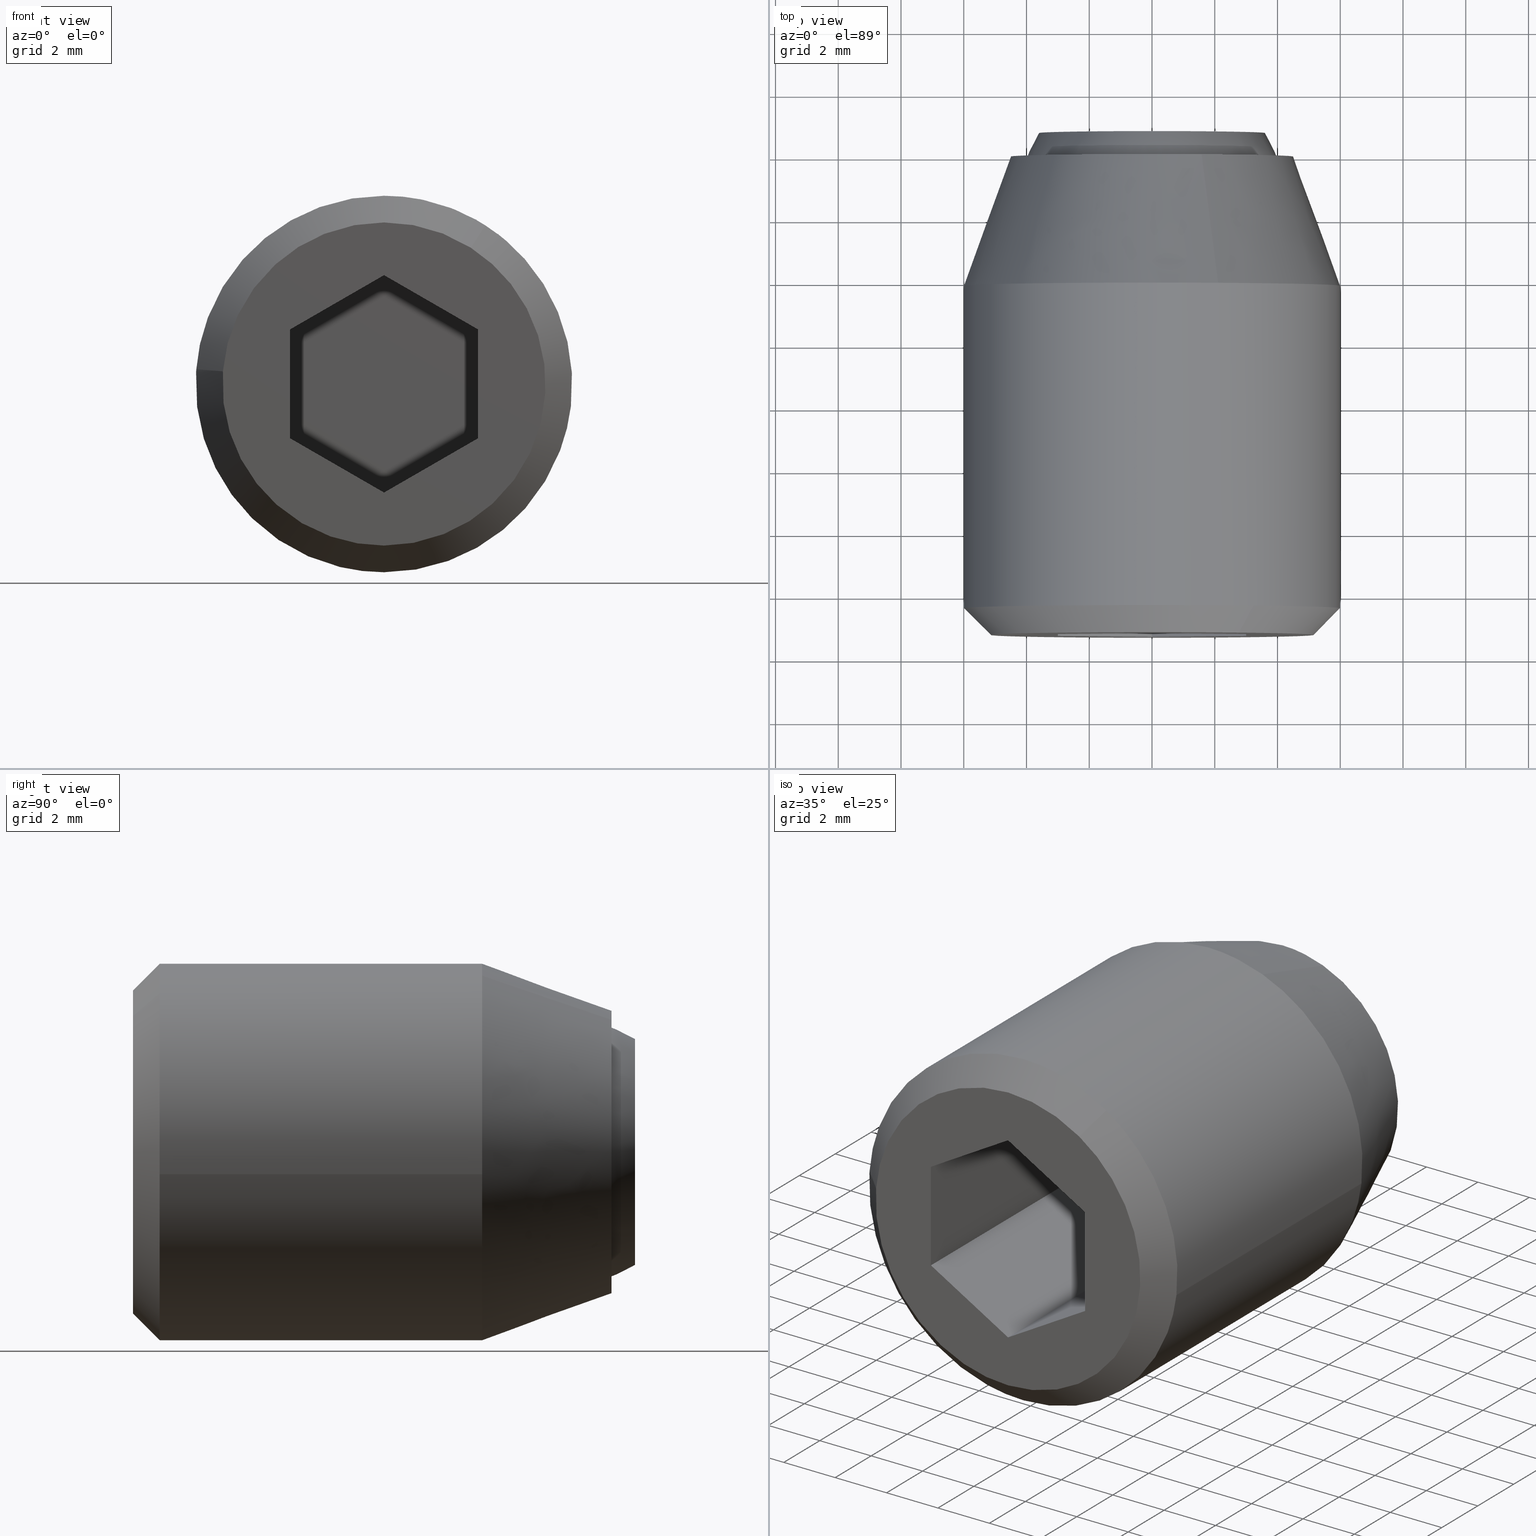
[diagram: canonical four-view strip — front | top / right | iso, engineering-drawing reading convention]
A machine part, canonical four-view strip (front | top / right | iso — engineering-drawing reading convention). The complete STEP part file that produces these views, byte-faithful:
ISO-10303-21;
HEADER;
/****************************************************************
 * Generated by software with PDE/Lib inside                    *
 * PDElib Version 4.4.1-0003, patched  Thursday August 19 11:58 *
 * International Technegroup Inc. (www.iti-oh.com)              *
 ****************************************************************/
FILE_DESCRIPTION((''),'2;1');
FILE_NAME('','2005-07-15T11:34:45',(''),(''),'','CADfix','');
FILE_SCHEMA(('AUTOMOTIVE_DESIGN'));
ENDSEC;
DATA;
#5=APPLICATION_CONTEXT('automotive design');
#6=APPLICATION_PROTOCOL_DEFINITION('Draft International Standard','automotive_design',1998,#5);
#7=PRODUCT_CONTEXT('None',#5,'mechanical');
#8=PRODUCT('body','','None',(#7));
#9=PRODUCT_RELATED_PRODUCT_CATEGORY('part','description',(#8));
#10=PRODUCT_DEFINITION_FORMATION('None','None',#8);
#11=PRODUCT_DEFINITION_CONTEXT('part definition',#5,'design');
#12=PRODUCT_DEFINITION('None','None',#10,#11);
#18=(NAMED_UNIT(*)PLANE_ANGLE_UNIT()SI_UNIT($,.RADIAN.));
#19=DIMENSIONAL_EXPONENTS(0.0,0.0,0.0,0.0,0.0,0.0,0.0);
#20=PLANE_ANGLE_MEASURE_WITH_UNIT(PLANE_ANGLE_MEASURE(0.017453292500000),#18);
#24=(CONVERSION_BASED_UNIT('DEGREE',#20)NAMED_UNIT(#19)PLANE_ANGLE_UNIT());
#28=(NAMED_UNIT(*)SI_UNIT($,.STERADIAN.)SOLID_ANGLE_UNIT());
#32=(LENGTH_UNIT()NAMED_UNIT(*)SI_UNIT(.MILLI.,.METRE.));
#34=UNCERTAINTY_MEASURE_WITH_UNIT(LENGTH_MEASURE(0.001000000000000),#32,'DISTANCE_ACCURACY_VALUE','');
#36=(GEOMETRIC_REPRESENTATION_CONTEXT(3)GLOBAL_UNCERTAINTY_ASSIGNED_CONTEXT((#34))GLOBAL_UNIT_ASSIGNED_CONTEXT((#24,#28,#32))REPRESENTATION_CONTEXT('None','None'));
#37=AXIS2_PLACEMENT_3D('',#38,#39,#40);
#38=CARTESIAN_POINT('',(0.0,0.0,0.0));
#39=DIRECTION('',(0.0,0.0,1.0));
#40=DIRECTION('',(1.0,0.0,0.0));
#41=ADVANCED_BREP_SHAPE_REPRESENTATION('',(#37,#949,#1121),#36);
#42=PRODUCT_DEFINITION_SHAPE('','',#12);
#43=SHAPE_DEFINITION_REPRESENTATION(#42,#41);
#44=CARTESIAN_POINT('',(-4.220290487045582,0.162500000000000,0.501645497291223));
#45=CARTESIAN_POINT('',(-4.234647365656575,0.162500000000000,0.380862596711405));
#46=CARTESIAN_POINT('',(-4.242072893292934,0.162500000000000,0.259456293023142));
#47=CARTESIAN_POINT('',(-4.501529186316076,0.162500000000000,-3.982616600269792));
#48=CARTESIAN_POINT('',(-0.259456293023142,0.162500000000000,-4.242072893292934));
#49=CARTESIAN_POINT('',(3.982616600269792,0.162500000000000,-4.501529186316076));
#50=CARTESIAN_POINT('',(4.242072893292934,0.162500000000000,-0.259456293023142));
#51=CARTESIAN_POINT('',(-4.220290487045582,-6.666562500000002,0.501645497291223));
#52=CARTESIAN_POINT('',(-4.234647365656575,-6.666562500000000,0.380862596711405));
#53=CARTESIAN_POINT('',(-4.242072893292934,-6.666562500000001,0.259456293023142));
#54=CARTESIAN_POINT('',(-4.501529186316076,-6.666562500000001,-3.982616600269792));
#55=CARTESIAN_POINT('',(-0.259456293023142,-6.666562500000001,-4.242072893292934));
#56=CARTESIAN_POINT('',(3.982616600269792,-6.666562500000001,-4.501529186316076));
#57=CARTESIAN_POINT('',(4.242072893292934,-6.666562500000001,-0.259456293023142));
#65=(BOUNDED_SURFACE()B_SPLINE_SURFACE(2,1,((#44,#51),(#45,#52),(#46,#53),(#47,#54),(#48,#55),(#49,#56),(#50,#57)),.UNSPECIFIED.,.F.,.F.,.U.)B_SPLINE_SURFACE_WITH_KNOTS((3,2,2,3),(2,2),(0.0,0.281665222413705,7.323295782756321,14.364926343098940),(0.0,6.829062500000003),.UNSPECIFIED.)GEOMETRIC_REPRESENTATION_ITEM()RATIONAL_B_SPLINE_SURFACE(((0.977505800795127,0.977505800795127),(0.988284271247462,0.988284271247462),(1.0,1.0),(0.707106781186548,0.707106781186548),(1.0,1.0),(0.707106781186548,0.707106781186548),(1.0,1.0)))REPRESENTATION_ITEM('')SURFACE());
#66=CARTESIAN_POINT('',(-4.220290981005106,-6.499999999999988,0.501641341627108));
#67=VERTEX_POINT('',#66);
#68=CARTESIAN_POINT('',(0.0,-6.500000000000000,-4.250000000000000));
#69=VERTEX_POINT('',#68);
#70=CARTESIAN_POINT('',(-4.220290981005106,-6.499999999999987,0.501641341627108));
#71=CARTESIAN_POINT('',(-4.250000000000000,-6.500000000000000,0.251700408722292));
#72=CARTESIAN_POINT('',(-4.250000000000000,-6.500000000000000,0.0));
#73=CARTESIAN_POINT('',(-4.249999999999999,-6.500000000000001,-4.249999999999999));
#74=CARTESIAN_POINT('',(0.0,-6.500000000000000,-4.250000000000000));
#82=(BOUNDED_CURVE()B_SPLINE_CURVE(2,(#70,#71,#72,#73,#74),.UNSPECIFIED.,.F.,.U.)B_SPLINE_CURVE_WITH_KNOTS((3,2,3),(0.229562639930914,0.250000000000000,0.500000000000000),.UNSPECIFIED.)CURVE()GEOMETRIC_REPRESENTATION_ITEM()RATIONAL_B_SPLINE_CURVE((0.956027080368884,0.976056143301264,1.0,0.707106781186548,1.0))REPRESENTATION_ITEM(''));
#83=EDGE_CURVE('',#67,#69,#82,.T.);
#84=ORIENTED_EDGE('',*,*,#83,.T.);
#85=CARTESIAN_POINT('',(4.242073222373178,-6.500000000000001,-0.259450912496721));
#86=VERTEX_POINT('',#85);
#87=CARTESIAN_POINT('',(0.0,-6.500000000000000,-4.250000000000000));
#88=CARTESIAN_POINT('',(3.998005864780058,-6.500000000000001,-4.250000000000001));
#89=CARTESIAN_POINT('',(4.242073222373178,-6.500000000000001,-0.259450912496721));
#97=(BOUNDED_CURVE()B_SPLINE_CURVE(2,(#87,#88,#89),.UNSPECIFIED.,.F.,.U.)B_SPLINE_CURVE_WITH_KNOTS((3,3),(0.500000000000000,0.739333181095518),.UNSPECIFIED.)CURVE()GEOMETRIC_REPRESENTATION_ITEM()RATIONAL_B_SPLINE_CURVE((1.0,0.719603736880283,0.976072510718469))REPRESENTATION_ITEM(''));
#98=EDGE_CURVE('',#69,#86,#97,.T.);
#99=ORIENTED_EDGE('',*,*,#98,.T.);
#100=CARTESIAN_POINT('',(4.242073218312985,-1.526557E-016,-0.259450978883026));
#101=VERTEX_POINT('',#100);
#102=CARTESIAN_POINT('',(4.242073218312985,-1.526557E-016,-0.259450978883026));
#103=CARTESIAN_POINT('',(4.242073222373178,-6.500000000000001,-0.259450912496721));
#104=QUASI_UNIFORM_CURVE('',1,(#102,#103),.UNSPECIFIED.,.F.,.U.);
#105=EDGE_CURVE('',#101,#86,#104,.T.);
#106=ORIENTED_EDGE('',*,*,#105,.F.);
#107=CARTESIAN_POINT('',(0.0,0.0,-4.250000000000000));
#108=VERTEX_POINT('',#107);
#109=CARTESIAN_POINT('',(0.0,0.0,-4.250000000000000));
#110=CARTESIAN_POINT('',(3.998005802096377,0.0,-4.250000000000001));
#111=CARTESIAN_POINT('',(4.242073218312986,-1.526557E-016,-0.259450978883027));
#119=(BOUNDED_CURVE()B_SPLINE_CURVE(2,(#109,#110,#111),.UNSPECIFIED.,.F.,.U.)B_SPLINE_CURVE_WITH_KNOTS((3,3),(0.500000000000000,0.739333178395247),.UNSPECIFIED.)CURVE()GEOMETRIC_REPRESENTATION_ITEM()RATIONAL_B_SPLINE_CURVE((1.0,0.719603740043847,0.976072504931263))REPRESENTATION_ITEM(''));
#120=EDGE_CURVE('',#108,#101,#119,.T.);
#121=ORIENTED_EDGE('',*,*,#120,.F.);
#122=CARTESIAN_POINT('',(-4.220290974913886,-1.561686E-016,0.501641392872752));
#123=VERTEX_POINT('',#122);
#124=CARTESIAN_POINT('',(-4.220290974913886,-1.561686E-016,0.501641392872752));
#125=CARTESIAN_POINT('',(-4.250000000000000,0.0,0.251700434615987));
#126=CARTESIAN_POINT('',(-4.250000000000000,0.0,0.0));
#127=CARTESIAN_POINT('',(-4.249999999999999,0.0,-4.249999999999999));
#128=CARTESIAN_POINT('',(0.0,0.0,-4.250000000000000));
#136=(BOUNDED_CURVE()B_SPLINE_CURVE(2,(#124,#125,#126,#127,#128),.UNSPECIFIED.,.F.,.U.)B_SPLINE_CURVE_WITH_KNOTS((3,2,3),(0.229562637878761,0.250000000000000,0.500000000000000),.UNSPECIFIED.)CURVE()GEOMETRIC_REPRESENTATION_ITEM()RATIONAL_B_SPLINE_CURVE((0.956027076346574,0.976056140897017,1.0,0.707106781186548,1.0))REPRESENTATION_ITEM(''));
#137=EDGE_CURVE('',#123,#108,#136,.T.);
#138=ORIENTED_EDGE('',*,*,#137,.F.);
#139=CARTESIAN_POINT('',(-4.220290974913886,-1.561686E-016,0.501641392872752));
#140=CARTESIAN_POINT('',(-4.220290981005106,-6.499999999999988,0.501641341627108));
#141=QUASI_UNIFORM_CURVE('',1,(#139,#140),.UNSPECIFIED.,.F.,.U.);
#142=EDGE_CURVE('',#123,#67,#141,.T.);
#143=ORIENTED_EDGE('',*,*,#142,.T.);
#144=EDGE_LOOP('',(#84,#99,#106,#121,#138,#143));
#145=FACE_OUTER_BOUND('',#144,.T.);
#146=ADVANCED_FACE('',(#145),#65,.F.);
#147=CARTESIAN_POINT('',(4.242072893292934,0.162500000000000,-0.259456293023142));
#148=CARTESIAN_POINT('',(4.501529186316076,0.162500000000000,3.982616600269792));
#149=CARTESIAN_POINT('',(0.259456293023142,0.162500000000000,4.242072893292934));
#150=CARTESIAN_POINT('',(-3.746559836067880,0.162500000000000,4.487091336113242));
#151=CARTESIAN_POINT('',(-4.220290487045582,0.162500000000000,0.501645497291223));
#152=CARTESIAN_POINT('',(4.242072893292934,-6.666562500000001,-0.259456293023142));
#153=CARTESIAN_POINT('',(4.501529186316076,-6.666562500000001,3.982616600269792));
#154=CARTESIAN_POINT('',(0.259456293023142,-6.666562500000001,4.242072893292934));
#155=CARTESIAN_POINT('',(-3.746559836067880,-6.666562500000003,4.487091336113242));
#156=CARTESIAN_POINT('',(-4.220290487045582,-6.666562500000002,0.501645497291223));
#164=(BOUNDED_SURFACE()B_SPLINE_SURFACE(2,1,((#147,#152),(#148,#153),(#149,#154),(#150,#155),(#151,#156)),.UNSPECIFIED.,.F.,.F.,.U.)B_SPLINE_SURFACE_WITH_KNOTS((3,2,3),(2,2),(0.0,7.041630560342616,13.801595898271531),(0.0,6.829062500000003),.UNSPECIFIED.)GEOMETRIC_REPRESENTATION_ITEM()RATIONAL_B_SPLINE_SURFACE(((1.0,1.0),(0.707106781186548,0.707106781186548),(1.0,1.0),(0.718822509939086,0.718822509939086),(0.977505800795127,0.977505800795127)))REPRESENTATION_ITEM('')SURFACE());
#165=CARTESIAN_POINT('',(0.0,-6.500000000000000,4.250000000000000));
#166=VERTEX_POINT('',#165);
#167=CARTESIAN_POINT('',(0.0,-6.500000000000000,4.250000000000000));
#168=CARTESIAN_POINT('',(-3.774745478398746,-6.500000000000000,4.250000000000000));
#169=CARTESIAN_POINT('',(-4.220290981005106,-6.499999999999987,0.501641341627108));
#177=(BOUNDED_CURVE()B_SPLINE_CURVE(2,(#167,#168,#169),.UNSPECIFIED.,.F.,.U.)B_SPLINE_CURVE_WITH_KNOTS((3,3),(0.0,0.229562639930914),.UNSPECIFIED.)CURVE()GEOMETRIC_REPRESENTATION_ITEM()RATIONAL_B_SPLINE_CURVE((1.0,0.731050637885284,0.956027080368884))REPRESENTATION_ITEM(''));
#178=EDGE_CURVE('',#166,#67,#177,.T.);
#179=ORIENTED_EDGE('',*,*,#178,.T.);
#180=ORIENTED_EDGE('',*,*,#142,.F.);
#181=CARTESIAN_POINT('',(0.0,0.0,4.250000000000000));
#182=VERTEX_POINT('',#181);
#183=CARTESIAN_POINT('',(0.0,0.0,4.250000000000000));
#184=CARTESIAN_POINT('',(-3.774745432240564,0.0,4.250000000000001));
#185=CARTESIAN_POINT('',(-4.220290974913886,-1.561686E-016,0.501641392872752));
#193=(BOUNDED_CURVE()B_SPLINE_CURVE(2,(#183,#184,#185),.UNSPECIFIED.,.F.,.U.)B_SPLINE_CURVE_WITH_KNOTS((3,3),(0.0,0.229562637878761),.UNSPECIFIED.)CURVE()GEOMETRIC_REPRESENTATION_ITEM()RATIONAL_B_SPLINE_CURVE((1.0,0.731050640289531,0.956027076346574))REPRESENTATION_ITEM(''));
#194=EDGE_CURVE('',#182,#123,#193,.T.);
#195=ORIENTED_EDGE('',*,*,#194,.F.);
#196=CARTESIAN_POINT('',(4.242073218312986,-1.526557E-016,-0.259450978883027));
#197=CARTESIAN_POINT('',(4.250000000000000,0.0,-0.129846579499034));
#198=CARTESIAN_POINT('',(4.250000000000000,0.0,0.0));
#199=CARTESIAN_POINT('',(4.249999999999999,0.0,4.249999999999999));
#200=CARTESIAN_POINT('',(0.0,0.0,4.250000000000000));
#208=(BOUNDED_CURVE()B_SPLINE_CURVE(2,(#196,#197,#198,#199,#200),.UNSPECIFIED.,.F.,.U.)B_SPLINE_CURVE_WITH_KNOTS((3,2,3),(0.739333178395247,0.750000000000000,1.0),.UNSPECIFIED.)CURVE()GEOMETRIC_REPRESENTATION_ITEM()RATIONAL_B_SPLINE_CURVE((0.976072504931263,0.987503041142700,1.0,0.707106781186548,1.0))REPRESENTATION_ITEM(''));
#209=EDGE_CURVE('',#101,#182,#208,.T.);
#210=ORIENTED_EDGE('',*,*,#209,.F.);
#211=ORIENTED_EDGE('',*,*,#105,.T.);
#212=CARTESIAN_POINT('',(4.242073222373178,-6.500000000000001,-0.259450912496721));
#213=CARTESIAN_POINT('',(4.250000000000000,-6.500000000000000,-0.129846546212818));
#214=CARTESIAN_POINT('',(4.250000000000000,-6.500000000000000,0.0));
#215=CARTESIAN_POINT('',(4.249999999999999,-6.500000000000001,4.249999999999999));
#216=CARTESIAN_POINT('',(0.0,-6.500000000000000,4.250000000000000));
#224=(BOUNDED_CURVE()B_SPLINE_CURVE(2,(#212,#213,#214,#215,#216),.UNSPECIFIED.,.F.,.U.)B_SPLINE_CURVE_WITH_KNOTS((3,2,3),(0.739333181095518,0.750000000000000,1.0),.UNSPECIFIED.)CURVE()GEOMETRIC_REPRESENTATION_ITEM()RATIONAL_B_SPLINE_CURVE((0.976072510718469,0.987503044306265,1.0,0.707106781186548,1.0))REPRESENTATION_ITEM(''));
#225=EDGE_CURVE('',#86,#166,#224,.T.);
#226=ORIENTED_EDGE('',*,*,#225,.T.);
#227=EDGE_LOOP('',(#179,#180,#195,#210,#211,#226));
#228=FACE_OUTER_BOUND('',#227,.T.);
#229=ADVANCED_FACE('',(#228),#164,.F.);
#230=CARTESIAN_POINT('',(2.758502256887217,-15.271249999999995,4.323741650613284));
#231=CARTESIAN_POINT('',(5.354545373706811,-15.271250000000006,2.667493110484247));
#232=CARTESIAN_POINT('',(5.112939775383778,-15.271250000000000,-0.402397087214189));
#233=CARTESIAN_POINT('',(4.710542688169590,-15.271250000000009,-5.515336862597967));
#234=CARTESIAN_POINT('',(-0.402397087214188,-15.271250000000000,-5.112939775383778));
#235=CARTESIAN_POINT('',(-5.515336862597965,-15.271250000000009,-4.710542688169592));
#236=CARTESIAN_POINT('',(-5.112939775383778,-15.271250000000000,0.402397087214187));
#237=CARTESIAN_POINT('',(3.238819823271979,-14.378218750000000,5.076602759250732));
#238=CARTESIAN_POINT('',(6.286892699714745,-14.378218749999993,3.131963928290177));
#239=CARTESIAN_POINT('',(6.003218108074153,-14.378218750000000,-0.472463511545897));
#240=CARTESIAN_POINT('',(5.530754596528257,-14.378218749999991,-6.475681619620050));
#241=CARTESIAN_POINT('',(-0.472463511545896,-14.378218750000000,-6.003218108074154));
#242=CARTESIAN_POINT('',(-6.475681619620049,-14.378218749999991,-5.530754596528257));
#243=CARTESIAN_POINT('',(-6.003218108074153,-14.378218750000000,0.472463511545895));
#251=(BOUNDED_SURFACE()B_SPLINE_SURFACE(2,1,((#230,#237),(#231,#238),(#232,#239),(#233,#240),(#234,#241),(#235,#242),(#236,#243)),.UNSPECIFIED.,.F.,.F.,.U.)B_SPLINE_SURFACE_WITH_KNOTS((3,2,2,3),(2,2),(0.0,6.784505420431716,16.761719274007771,26.738933127583820),(0.0,1.0),.UNSPECIFIED.)GEOMETRIC_REPRESENTATION_ITEM()RATIONAL_B_SPLINE_SURFACE(((0.872532871172386,0.872532871172386),(0.800832611206852,0.800832611206852),(1.0,1.0),(0.707106781186548,0.707106781186548),(1.0,1.0),(0.707106781186548,0.707106781186548),(1.0,1.0)))REPRESENTATION_ITEM('')SURFACE());
#252=CARTESIAN_POINT('',(5.958057619192932,-14.400000000000000,-0.708201529482814));
#253=VERTEX_POINT('',#252);
#254=CARTESIAN_POINT('',(3.227104760680961,-14.399999999999780,5.058240293184284));
#255=VERTEX_POINT('',#254);
#256=CARTESIAN_POINT('',(5.958057619192932,-14.399999999999991,-0.708201529482814));
#257=CARTESIAN_POINT('',(6.0,-14.399999999999999,-0.355342758181502));
#258=CARTESIAN_POINT('',(6.0,-14.400000000000000,-1.025608E-015));
#259=CARTESIAN_POINT('',(6.000000000000001,-14.400000000000007,3.289161936082690));
#260=CARTESIAN_POINT('',(3.227104760680960,-14.399999999999777,5.058240293184285));
#268=(BOUNDED_CURVE()B_SPLINE_CURVE(2,(#256,#257,#258,#259,#260),.UNSPECIFIED.,.F.,.U.)B_SPLINE_CURVE_WITH_KNOTS((3,2,3),(0.229562583530028,0.250000000000000,0.407950112627351),.UNSPECIFIED.)CURVE()GEOMETRIC_REPRESENTATION_ITEM()RATIONAL_B_SPLINE_CURVE((0.956026969820694,0.976056077223515,1.0,0.814949932402511,0.863729296954801))REPRESENTATION_ITEM(''));
#269=EDGE_CURVE('',#253,#255,#268,.T.);
#270=ORIENTED_EDGE('',*,*,#269,.T.);
#271=CARTESIAN_POINT('',(2.769931586254138,-15.249999999999620,4.341656251648153));
#272=VERTEX_POINT('',#271);
#273=CARTESIAN_POINT('',(2.769931586254138,-15.249999999999620,4.341656251648153));
#274=CARTESIAN_POINT('',(3.227104760680961,-14.399999999999780,5.058240293184284));
#275=QUASI_UNIFORM_CURVE('',1,(#273,#274),.UNSPECIFIED.,.F.,.U.);
#276=EDGE_CURVE('',#272,#255,#275,.T.);
#277=ORIENTED_EDGE('',*,*,#276,.F.);
#278=CARTESIAN_POINT('',(0.0,-15.250000000000000,-5.150000000000001));
#279=VERTEX_POINT('',#278);
#280=CARTESIAN_POINT('',(0.0,-15.250000000000000,-5.150000000000001));
#281=CARTESIAN_POINT('',(5.150000000000001,-15.250000000000002,-5.150000000000001));
#282=CARTESIAN_POINT('',(5.150000000000000,-15.250000000000000,-1.025608E-015));
#283=CARTESIAN_POINT('',(5.150000000000000,-15.250000000000004,2.823197328466532));
#284=CARTESIAN_POINT('',(2.769931586254138,-15.249999999999623,4.341656251648153));
#292=(BOUNDED_CURVE()B_SPLINE_CURVE(2,(#280,#281,#282,#283,#284),.UNSPECIFIED.,.F.,.U.)B_SPLINE_CURVE_WITH_KNOTS((3,2,3),(0.0,0.250000000000000,0.407950112627149),.UNSPECIFIED.)CURVE()GEOMETRIC_REPRESENTATION_ITEM()RATIONAL_B_SPLINE_CURVE((1.0,0.707106781186547,1.0,0.814949932402748,0.863729296954676))REPRESENTATION_ITEM(''));
#293=EDGE_CURVE('',#279,#272,#292,.T.);
#294=ORIENTED_EDGE('',*,*,#293,.F.);
#295=CARTESIAN_POINT('',(-5.134124268725692,-15.249999999999790,0.404064342999993));
#296=VERTEX_POINT('',#295);
#297=CARTESIAN_POINT('',(-5.134124268725693,-15.249999999999796,0.404064342999993));
#298=CARTESIAN_POINT('',(-5.150000000000000,-15.250000000000002,0.202344051091080));
#299=CARTESIAN_POINT('',(-5.150000000000000,-15.250000000000000,-1.025608E-015));
#300=CARTESIAN_POINT('',(-5.150000000000001,-15.250000000000002,-5.150000000000001));
#301=CARTESIAN_POINT('',(0.0,-15.250000000000000,-5.150000000000001));
#309=(BOUNDED_CURVE()B_SPLINE_CURVE(2,(#297,#298,#299,#300,#301),.UNSPECIFIED.,.F.,.U.)B_SPLINE_CURVE_WITH_KNOTS((3,2,3),(0.736331300632662,0.750000000000000,1.0),.UNSPECIFIED.)CURVE()GEOMETRIC_REPRESENTATION_ITEM()RATIONAL_B_SPLINE_CURVE((0.969723356171596,0.983986122581228,1.0,0.707106781186547,1.0))REPRESENTATION_ITEM(''));
#310=EDGE_CURVE('',#296,#279,#309,.T.);
#311=ORIENTED_EDGE('',*,*,#310,.F.);
#312=CARTESIAN_POINT('',(-5.981504002399075,-14.399999999999240,0.470754574372927));
#313=VERTEX_POINT('',#312);
#314=CARTESIAN_POINT('',(-5.134124268725692,-15.249999999999790,0.404064342999993));
#315=CARTESIAN_POINT('',(-5.981504002399075,-14.399999999999240,0.470754574372927));
#316=QUASI_UNIFORM_CURVE('',1,(#314,#315),.UNSPECIFIED.,.F.,.U.);
#317=EDGE_CURVE('',#296,#313,#316,.T.);
#318=ORIENTED_EDGE('',*,*,#317,.T.);
#319=CARTESIAN_POINT('',(-5.988808851118314,-14.400000000000000,0.366290246615907));
#320=VERTEX_POINT('',#319);
#321=CARTESIAN_POINT('',(-5.981504002399074,-14.399999999999235,0.470754574372926));
#322=CARTESIAN_POINT('',(-5.985612293203023,-14.400000000000000,0.418553790293735));
#323=CARTESIAN_POINT('',(-5.988808851118314,-14.400000000000002,0.366290246615907));
#331=(BOUNDED_CURVE()B_SPLINE_CURVE(2,(#321,#322,#323),.UNSPECIFIED.,.F.,.U.)B_SPLINE_CURVE_WITH_KNOTS((3,3),(0.736331300632435,0.739333019323000),.UNSPECIFIED.)CURVE()GEOMETRIC_REPRESENTATION_ITEM()RATIONAL_B_SPLINE_CURVE((0.969723356171122,0.972855535126874,0.976072164008749))REPRESENTATION_ITEM(''));
#332=EDGE_CURVE('',#313,#320,#331,.T.);
#333=ORIENTED_EDGE('',*,*,#332,.T.);
#334=CARTESIAN_POINT('',(0.0,-14.400000000000000,-6.000000000000001));
#335=VERTEX_POINT('',#334);
#336=CARTESIAN_POINT('',(-5.988808851118314,-14.400000000000002,0.366290246615907));
#337=CARTESIAN_POINT('',(-5.999999999999999,-14.400000000000000,0.183315586420787));
#338=CARTESIAN_POINT('',(-6.0,-14.400000000000000,-1.025608E-015));
#339=CARTESIAN_POINT('',(-6.0,-14.400000000000006,-6.0));
#340=CARTESIAN_POINT('',(0.0,-14.400000000000000,-6.000000000000001));
#348=(BOUNDED_CURVE()B_SPLINE_CURVE(2,(#336,#337,#338,#339,#340),.UNSPECIFIED.,.F.,.U.)B_SPLINE_CURVE_WITH_KNOTS((3,2,3),(0.739333019323000,0.750000000000000,1.0),.UNSPECIFIED.)CURVE()GEOMETRIC_REPRESENTATION_ITEM()RATIONAL_B_SPLINE_CURVE((0.976072164008749,0.987502854777970,1.0,0.707106781186548,1.0))REPRESENTATION_ITEM(''));
#349=EDGE_CURVE('',#320,#335,#348,.T.);
#350=ORIENTED_EDGE('',*,*,#349,.T.);
#351=CARTESIAN_POINT('',(0.0,-14.400000000000000,-6.000000000000001));
#352=CARTESIAN_POINT('',(5.329050649126889,-14.400000000000009,-6.000000000000002));
#353=CARTESIAN_POINT('',(5.958057619192932,-14.399999999999991,-0.708201529482814));
#361=(BOUNDED_CURVE()B_SPLINE_CURVE(2,(#351,#352,#353),.UNSPECIFIED.,.F.,.U.)B_SPLINE_CURVE_WITH_KNOTS((3,3),(0.0,0.229562583530028),.UNSPECIFIED.)CURVE()GEOMETRIC_REPRESENTATION_ITEM()RATIONAL_B_SPLINE_CURVE((1.0,0.731050703963032,0.956026969820694))REPRESENTATION_ITEM(''));
#362=EDGE_CURVE('',#335,#253,#361,.T.);
#363=ORIENTED_EDGE('',*,*,#362,.T.);
#364=EDGE_LOOP('',(#270,#277,#294,#311,#318,#333,#350,#363));
#365=FACE_OUTER_BOUND('',#364,.T.);
#366=ADVANCED_FACE('',(#365),#251,.T.);
#367=CARTESIAN_POINT('',(-5.112939775383778,-15.271250000000000,0.402397087214187));
#368=CARTESIAN_POINT('',(-4.710542688169590,-15.271250000000009,5.515336862597963));
#369=CARTESIAN_POINT('',(0.402397087214188,-15.271250000000000,5.112939775383777));
#370=CARTESIAN_POINT('',(1.678971265486370,-15.271249999999998,5.012471208665521));
#371=CARTESIAN_POINT('',(2.758502256887217,-15.271249999999995,4.323741650613284));
#372=CARTESIAN_POINT('',(-6.003218108074153,-14.378218750000000,0.472463511545895));
#373=CARTESIAN_POINT('',(-5.530754596528257,-14.378218749999991,6.475681619620048));
#374=CARTESIAN_POINT('',(0.472463511545896,-14.378218750000000,6.003218108074152));
#375=CARTESIAN_POINT('',(1.971318096182232,-14.378218749999998,5.885255693981367));
#376=CARTESIAN_POINT('',(3.238819823271979,-14.378218750000000,5.076602759250732));
#384=(BOUNDED_SURFACE()B_SPLINE_SURFACE(2,1,((#367,#372),(#368,#373),(#369,#374),(#370,#375),(#371,#376)),.UNSPECIFIED.,.F.,.F.,.U.)B_SPLINE_SURFACE_WITH_KNOTS((3,2,3),(2,2),(0.0,9.977213853576053,13.169922286720389),(0.0,1.0),.UNSPECIFIED.)GEOMETRIC_REPRESENTATION_ITEM()RATIONAL_B_SPLINE_SURFACE(((1.0,1.0),(0.707106781186548,0.707106781186548),(1.0,1.0),(0.906274169979695,0.906274169979695),(0.872532871172386,0.872532871172386)))REPRESENTATION_ITEM('')SURFACE());
#385=CARTESIAN_POINT('',(0.0,-14.400000000000000,5.999999999999999));
#386=VERTEX_POINT('',#385);
#387=CARTESIAN_POINT('',(3.227104760680960,-14.399999999999777,5.058240293184285));
#388=CARTESIAN_POINT('',(1.750968332280244,-14.399999999999997,5.999999999999999));
#389=CARTESIAN_POINT('',(0.0,-14.400000000000000,5.999999999999999));
#397=(BOUNDED_CURVE()B_SPLINE_CURVE(2,(#387,#388,#389),.UNSPECIFIED.,.F.,.U.)B_SPLINE_CURVE_WITH_KNOTS((3,3),(0.407950112627352,0.500000000000000),.UNSPECIFIED.)CURVE()GEOMETRIC_REPRESENTATION_ITEM()RATIONAL_B_SPLINE_CURVE((0.863729296954801,0.892156848784037,1.0))REPRESENTATION_ITEM(''));
#398=EDGE_CURVE('',#255,#386,#397,.T.);
#399=ORIENTED_EDGE('',*,*,#398,.T.);
#400=CARTESIAN_POINT('',(0.0,-14.400000000000000,5.999999999999999));
#401=CARTESIAN_POINT('',(-5.546342949938479,-14.400000000000000,5.999999999999999));
#402=CARTESIAN_POINT('',(-5.981504002399075,-14.399999999999240,0.470754574372926));
#410=(BOUNDED_CURVE()B_SPLINE_CURVE(2,(#400,#401,#402),.UNSPECIFIED.,.F.,.U.)B_SPLINE_CURVE_WITH_KNOTS((3,3),(0.500000000000000,0.736331300632435),.UNSPECIFIED.)CURVE()GEOMETRIC_REPRESENTATION_ITEM()RATIONAL_B_SPLINE_CURVE((1.0,0.723120658605585,0.969723356171123))REPRESENTATION_ITEM(''));
#411=EDGE_CURVE('',#386,#313,#410,.T.);
#412=ORIENTED_EDGE('',*,*,#411,.T.);
#413=ORIENTED_EDGE('',*,*,#317,.F.);
#414=CARTESIAN_POINT('',(0.0,-15.250000000000000,5.150000000000000));
#415=VERTEX_POINT('',#414);
#416=CARTESIAN_POINT('',(0.0,-15.250000000000000,5.150000000000000));
#417=CARTESIAN_POINT('',(-4.760611032036836,-15.250000000000002,5.150000000000000));
#418=CARTESIAN_POINT('',(-5.134124268725693,-15.249999999999796,0.404064342999993));
#426=(BOUNDED_CURVE()B_SPLINE_CURVE(2,(#416,#417,#418),.UNSPECIFIED.,.F.,.U.)B_SPLINE_CURVE_WITH_KNOTS((3,3),(0.500000000000000,0.736331300632662),.UNSPECIFIED.)CURVE()GEOMETRIC_REPRESENTATION_ITEM()RATIONAL_B_SPLINE_CURVE((1.0,0.723120658605320,0.969723356171596))REPRESENTATION_ITEM(''));
#427=EDGE_CURVE('',#415,#296,#426,.T.);
#428=ORIENTED_EDGE('',*,*,#427,.F.);
#429=CARTESIAN_POINT('',(2.769931586254138,-15.249999999999625,4.341656251648153));
#430=CARTESIAN_POINT('',(1.502914485210922,-15.250000000000002,5.150000000000000));
#431=CARTESIAN_POINT('',(0.0,-15.250000000000000,5.150000000000000));
#439=(BOUNDED_CURVE()B_SPLINE_CURVE(2,(#429,#430,#431),.UNSPECIFIED.,.F.,.U.)B_SPLINE_CURVE_WITH_KNOTS((3,3),(0.407950112627149,0.500000000000000),.UNSPECIFIED.)CURVE()GEOMETRIC_REPRESENTATION_ITEM()RATIONAL_B_SPLINE_CURVE((0.863729296954676,0.892156848783799,1.0))REPRESENTATION_ITEM(''));
#440=EDGE_CURVE('',#272,#415,#439,.T.);
#441=ORIENTED_EDGE('',*,*,#440,.F.);
#442=ORIENTED_EDGE('',*,*,#276,.T.);
#443=EDGE_LOOP('',(#399,#412,#413,#428,#441,#442));
#444=FACE_OUTER_BOUND('',#443,.T.);
#445=ADVANCED_FACE('',(#444),#384,.T.);
#446=CARTESIAN_POINT('',(1.569095210722392,0.103030400000000,4.177540720290837));
#447=CARTESIAN_POINT('',(0.941540428280011,0.103030400000000,4.413251936416990));
#448=CARTESIAN_POINT('',(0.272429107674300,0.103030400000000,4.454176537957586));
#449=CARTESIAN_POINT('',(-4.181747430283287,0.103030400000000,4.726605645631885));
#450=CARTESIAN_POINT('',(-4.454176537957586,0.103030400000000,0.272429107674299));
#451=CARTESIAN_POINT('',(2.123223162240108,-4.226822160000000,5.652844491469169));
#452=CARTESIAN_POINT('',(1.274046617342760,-4.226822160000000,5.971797420685251));
#453=CARTESIAN_POINT('',(0.368637790447513,-4.226822160000000,6.027174596845539));
#454=CARTESIAN_POINT('',(-5.658536806398027,-4.226822159999999,6.395812387293051));
#455=CARTESIAN_POINT('',(-6.027174596845540,-4.226822160000000,0.368637790447512));
#463=(BOUNDED_SURFACE()B_SPLINE_SURFACE(2,1,((#446,#451),(#447,#452),(#448,#453),(#449,#454),(#450,#455)),.UNSPECIFIED.,.F.,.F.,.U.)B_SPLINE_SURFACE_WITH_KNOTS((3,2,3),(2,2),(0.0,2.000962166433828,12.005772998602970),(0.0,4.607732869345269),.UNSPECIFIED.)GEOMETRIC_REPRESENTATION_ITEM()RATIONAL_B_SPLINE_SURFACE(((0.906274169979695,0.906274169979695),(0.941421356237309,0.941421356237309),(1.0,1.0),(0.707106781186548,0.707106781186548),(1.0,1.0)))REPRESENTATION_ITEM('')SURFACE());
#464=CARTESIAN_POINT('',(2.109704741784568,-4.121211920134648,5.616861052499977));
#465=VERTEX_POINT('',#464);
#466=CARTESIAN_POINT('',(0.0,-4.121216000000000,5.999999999999999));
#467=VERTEX_POINT('',#466);
#468=CARTESIAN_POINT('',(2.109704741784568,-4.121211920134647,5.616861052499977));
#469=CARTESIAN_POINT('',(1.089642630550919,-4.121213960067324,5.999999304936567));
#470=CARTESIAN_POINT('',(0.0,-4.121216000000000,5.999999999999999));
#478=(BOUNDED_CURVE()B_SPLINE_CURVE(2,(#468,#469,#470),.UNSPECIFIED.,.F.,.U.)B_SPLINE_CURVE_WITH_KNOTS((3,3),(0.440284243518573,0.500000000000000),.UNSPECIFIED.)CURVE()GEOMETRIC_REPRESENTATION_ITEM()RATIONAL_B_SPLINE_CURVE((0.893499643505045,0.930038639481098,1.0))REPRESENTATION_ITEM(''));
#479=EDGE_CURVE('',#465,#467,#478,.T.);
#480=ORIENTED_EDGE('',*,*,#479,.F.);
#481=CARTESIAN_POINT('',(1.582279453548931,0.000001884171921,4.212645909500716));
#482=VERTEX_POINT('',#481);
#483=CARTESIAN_POINT('',(1.582279453548931,0.000001884171921,4.212645909500716));
#484=CARTESIAN_POINT('',(2.109704741784568,-4.121211920134648,5.616861052499977));
#485=QUASI_UNIFORM_CURVE('',1,(#483,#484),.UNSPECIFIED.,.F.,.U.);
#486=EDGE_CURVE('',#482,#465,#485,.T.);
#487=ORIENTED_EDGE('',*,*,#486,.F.);
#488=CARTESIAN_POINT('',(0.0,0.0,4.499999999999999));
#489=VERTEX_POINT('',#488);
#490=CARTESIAN_POINT('',(1.582279453548931,0.000001884171921,4.212645909500716));
#491=CARTESIAN_POINT('',(0.817232460141086,0.000000942085960,4.499999679004433));
#492=CARTESIAN_POINT('',(0.0,0.0,4.499999999999999));
#500=(BOUNDED_CURVE()B_SPLINE_CURVE(2,(#490,#491,#492),.UNSPECIFIED.,.F.,.U.)B_SPLINE_CURVE_WITH_KNOTS((3,3),(0.440284215520028,0.500000000000000),.UNSPECIFIED.)CURVE()GEOMETRIC_REPRESENTATION_ITEM()RATIONAL_B_SPLINE_CURVE((0.893499609241441,0.930038606678762,1.0))REPRESENTATION_ITEM(''));
#501=EDGE_CURVE('',#482,#489,#500,.T.);
#502=ORIENTED_EDGE('',*,*,#501,.T.);
#503=CARTESIAN_POINT('',(-4.491606592898449,-1.484542E-012,0.274718427914976));
#504=VERTEX_POINT('',#503);
#505=CARTESIAN_POINT('',(0.0,0.0,4.499999999999999));
#506=CARTESIAN_POINT('',(-4.233177301060372,0.0,4.499999999999999));
#507=CARTESIAN_POINT('',(-4.491606592898449,-1.484542E-012,0.274718427914976));
#515=(BOUNDED_CURVE()B_SPLINE_CURVE(2,(#505,#506,#507),.UNSPECIFIED.,.F.,.U.)B_SPLINE_CURVE_WITH_KNOTS((3,3),(0.500000000000000,0.739332962241348),.UNSPECIFIED.)CURVE()GEOMETRIC_REPRESENTATION_ITEM()RATIONAL_B_SPLINE_CURVE((1.0,0.719603993283893,0.976072041671871))REPRESENTATION_ITEM(''));
#516=EDGE_CURVE('',#489,#504,#515,.T.);
#517=ORIENTED_EDGE('',*,*,#516,.T.);
#518=CARTESIAN_POINT('',(-5.988808820275182,-4.121215999515002,0.366290748006480));
#519=VERTEX_POINT('',#518);
#520=CARTESIAN_POINT('',(-4.491606592898449,-1.484542E-012,0.274718427914976));
#521=CARTESIAN_POINT('',(-5.988808820275182,-4.121215999515002,0.366290748006480));
#522=QUASI_UNIFORM_CURVE('',1,(#520,#521),.UNSPECIFIED.,.F.,.U.);
#523=EDGE_CURVE('',#504,#519,#522,.T.);
#524=ORIENTED_EDGE('',*,*,#523,.T.);
#525=CARTESIAN_POINT('',(0.0,-4.121216000000000,5.999999999999999));
#526=CARTESIAN_POINT('',(-5.644236863341449,-4.121215999999999,5.999999999999998));
#527=CARTESIAN_POINT('',(-5.988808820275182,-4.121215999515002,0.366290748006480));
#535=(BOUNDED_CURVE()B_SPLINE_CURVE(2,(#525,#526,#527),.UNSPECIFIED.,.F.,.U.)B_SPLINE_CURVE_WITH_KNOTS((3,3),(0.500000000000000,0.739332976336339),.UNSPECIFIED.)CURVE()GEOMETRIC_REPRESENTATION_ITEM()RATIONAL_B_SPLINE_CURVE((1.0,0.719603976770584,0.976072071880122))REPRESENTATION_ITEM(''));
#536=EDGE_CURVE('',#467,#519,#535,.T.);
#537=ORIENTED_EDGE('',*,*,#536,.F.);
#538=EDGE_LOOP('',(#480,#487,#502,#517,#524,#537));
#539=FACE_OUTER_BOUND('',#538,.T.);
#540=ADVANCED_FACE('',(#539),#463,.T.);
#541=CARTESIAN_POINT('',(-4.454176537957586,0.103030400000000,0.272429107674299));
#542=CARTESIAN_POINT('',(-4.726605645631885,0.103030400000000,-4.181747430283287));
#543=CARTESIAN_POINT('',(-0.272429107674300,0.103030400000000,-4.454176537957587));
#544=CARTESIAN_POINT('',(4.181747430283287,0.103030400000000,-4.726605645631887));
#545=CARTESIAN_POINT('',(4.454176537957586,0.103030400000000,-0.272429107674301));
#546=CARTESIAN_POINT('',(4.655446107054444,0.103030400000000,3.018299258796182));
#547=CARTESIAN_POINT('',(1.569095210722392,0.103030400000000,4.177540720290837));
#548=CARTESIAN_POINT('',(-6.027174596845540,-4.226822160000000,0.368637790447512));
#549=CARTESIAN_POINT('',(-6.395812387293054,-4.226822159999999,-5.658536806398028));
#550=CARTESIAN_POINT('',(-0.368637790447513,-4.226822160000000,-6.027174596845541));
#551=CARTESIAN_POINT('',(5.658536806398027,-4.226822159999999,-6.395812387293054));
#552=CARTESIAN_POINT('',(6.027174596845540,-4.226822160000000,-0.368637790447514));
#553=CARTESIAN_POINT('',(6.299522767970091,-4.226822159999999,4.084215446618945));
#554=CARTESIAN_POINT('',(2.123223162240108,-4.226822160000000,5.652844491469169));
#562=(BOUNDED_SURFACE()B_SPLINE_SURFACE(2,1,((#541,#548),(#542,#549),(#543,#550),(#544,#551),(#545,#552),(#546,#553),(#547,#554)),.UNSPECIFIED.,.F.,.F.,.U.)B_SPLINE_SURFACE_WITH_KNOTS((3,2,2,3),(2,2),(0.0,10.004810832169140,20.009621664338280,28.013470330073599),(0.0,4.607732869345269),.UNSPECIFIED.)GEOMETRIC_REPRESENTATION_ITEM()RATIONAL_B_SPLINE_SURFACE(((1.0,1.0),(0.707106781186548,0.707106781186548),(1.0,1.0),(0.707106781186548,0.707106781186548),(1.0,1.0),(0.765685424949238,0.765685424949238),(0.906274169979695,0.906274169979695)))REPRESENTATION_ITEM('')SURFACE());
#563=CARTESIAN_POINT('',(5.958057613507930,-4.121216000000000,-0.708201577310656));
#564=VERTEX_POINT('',#563);
#565=CARTESIAN_POINT('',(5.958057613507930,-4.121216000000001,-0.708201577310656));
#566=CARTESIAN_POINT('',(5.999999980277452,-4.121215845900837,-0.355342834854087));
#567=CARTESIAN_POINT('',(5.999999958869038,-4.121215678618946,-0.000000109503587));
#568=CARTESIAN_POINT('',(5.999999708502103,-4.121213722292182,4.155658839035680));
#569=CARTESIAN_POINT('',(2.109704741784568,-4.121211920134647,5.616861052499977));
#577=(BOUNDED_CURVE()B_SPLINE_CURVE(2,(#565,#566,#567,#568,#569),.UNSPECIFIED.,.F.,.U.)B_SPLINE_CURVE_WITH_KNOTS((3,2,3),(0.229562582173367,0.250000000000000,0.440284243518573),.UNSPECIFIED.)CURVE()GEOMETRIC_REPRESENTATION_ITEM()RATIONAL_B_SPLINE_CURVE((0.956026967161581,0.976056075634089,1.0,0.777068141705449,0.893499643505045))REPRESENTATION_ITEM(''));
#578=EDGE_CURVE('',#564,#465,#577,.T.);
#579=ORIENTED_EDGE('',*,*,#578,.F.);
#580=CARTESIAN_POINT('',(0.0,-4.121216000000000,-6.000000000000001));
#581=VERTEX_POINT('',#580);
#582=CARTESIAN_POINT('',(0.0,-4.121216000000000,-6.000000000000001));
#583=CARTESIAN_POINT('',(5.329050606047210,-4.121216000000000,-6.0));
#584=CARTESIAN_POINT('',(5.958057613507930,-4.121216000000001,-0.708201577310656));
#592=(BOUNDED_CURVE()B_SPLINE_CURVE(2,(#582,#583,#584),.UNSPECIFIED.,.F.,.U.)B_SPLINE_CURVE_WITH_KNOTS((3,3),(0.0,0.229562582173367),.UNSPECIFIED.)CURVE()GEOMETRIC_REPRESENTATION_ITEM()RATIONAL_B_SPLINE_CURVE((1.0,0.731050705552459,0.956026967161581))REPRESENTATION_ITEM(''));
#593=EDGE_CURVE('',#581,#564,#592,.T.);
#594=ORIENTED_EDGE('',*,*,#593,.F.);
#595=CARTESIAN_POINT('',(-5.988808820275182,-4.121215999515002,0.366290748006480));
#596=CARTESIAN_POINT('',(-6.000000000000001,-4.121216000000000,0.183316334509770));
#597=CARTESIAN_POINT('',(-6.0,-4.121216000000000,-1.025608E-015));
#598=CARTESIAN_POINT('',(-6.0,-4.121215999999999,-6.0));
#599=CARTESIAN_POINT('',(0.0,-4.121216000000000,-6.000000000000001));
#607=(BOUNDED_CURVE()B_SPLINE_CURVE(2,(#595,#596,#597,#598,#599),.UNSPECIFIED.,.F.,.U.)B_SPLINE_CURVE_WITH_KNOTS((3,2,3),(0.739332976336339,0.750000000000000,1.0),.UNSPECIFIED.)CURVE()GEOMETRIC_REPRESENTATION_ITEM()RATIONAL_B_SPLINE_CURVE((0.976072071880122,0.987502804415964,1.0,0.707106781186548,1.0))REPRESENTATION_ITEM(''));
#608=EDGE_CURVE('',#519,#581,#607,.T.);
#609=ORIENTED_EDGE('',*,*,#608,.F.);
#610=ORIENTED_EDGE('',*,*,#523,.F.);
#611=CARTESIAN_POINT('',(0.0,0.0,-4.500000000000001));
#612=VERTEX_POINT('',#611);
#613=CARTESIAN_POINT('',(-4.491606592898449,-1.484542E-012,0.274718427914976));
#614=CARTESIAN_POINT('',(-4.500000000000000,0.0,0.137487434851759));
#615=CARTESIAN_POINT('',(-4.500000000000000,0.0,-1.025608E-015));
#616=CARTESIAN_POINT('',(-4.500000000000000,0.0,-4.500000000000000));
#617=CARTESIAN_POINT('',(0.0,0.0,-4.500000000000001));
#625=(BOUNDED_CURVE()B_SPLINE_CURVE(2,(#613,#614,#615,#616,#617),.UNSPECIFIED.,.F.,.U.)B_SPLINE_CURVE_WITH_KNOTS((3,2,3),(0.739332962241347,0.750000000000000,1.0),.UNSPECIFIED.)CURVE()GEOMETRIC_REPRESENTATION_ITEM()RATIONAL_B_SPLINE_CURVE((0.976072041671870,0.987502787902654,1.0,0.707106781186547,1.0))REPRESENTATION_ITEM(''));
#626=EDGE_CURVE('',#504,#612,#625,.T.);
#627=ORIENTED_EDGE('',*,*,#626,.T.);
#628=CARTESIAN_POINT('',(0.0,0.0,-4.500000000000001));
#629=CARTESIAN_POINT('',(4.499999978104220,0.000000171089631,-4.500000058295120));
#630=CARTESIAN_POINT('',(4.499999857537549,0.000001113175592,-0.000000379290687));
#631=CARTESIAN_POINT('',(4.499999774031891,0.000001765673565,3.116743519554750));
#632=CARTESIAN_POINT('',(1.582279453548931,0.000001884171921,4.212645909500716));
#640=(BOUNDED_CURVE()B_SPLINE_CURVE(2,(#628,#629,#630,#631,#632),.UNSPECIFIED.,.F.,.U.)B_SPLINE_CURVE_WITH_KNOTS((3,2,3),(0.0,0.250000000000000,0.440284215520028),.UNSPECIFIED.)CURVE()GEOMETRIC_REPRESENTATION_ITEM()RATIONAL_B_SPLINE_CURVE((1.0,0.707106781186547,1.0,0.777068174507786,0.893499609241441))REPRESENTATION_ITEM(''));
#641=EDGE_CURVE('',#612,#482,#640,.T.);
#642=ORIENTED_EDGE('',*,*,#641,.T.);
#643=ORIENTED_EDGE('',*,*,#486,.T.);
#644=EDGE_LOOP('',(#579,#594,#609,#610,#627,#642,#643));
#645=FACE_OUTER_BOUND('',#644,.T.);
#646=ADVANCED_FACE('',(#645),#562,.T.);
#647=CARTESIAN_POINT('',(5.958057158181998,-3.864246399999998,-0.708205407940552));
#648=CARTESIAN_POINT('',(5.978325692691634,-3.864246399999998,-0.537688371827867));
#649=CARTESIAN_POINT('',(5.988808790531200,-3.864246399999998,-0.366291237209143));
#650=CARTESIAN_POINT('',(6.355100027740342,-3.864246399999999,5.622517553322058));
#651=CARTESIAN_POINT('',(0.366291237209142,-3.864246399999998,5.988808790531199));
#652=CARTESIAN_POINT('',(-5.622517553322059,-3.864246399999999,6.355100027740342));
#653=CARTESIAN_POINT('',(-5.988808790531200,-3.864246399999998,0.366291237209141));
#654=CARTESIAN_POINT('',(5.958057158181998,-14.663393840000003,-0.708205407940552));
#655=CARTESIAN_POINT('',(5.978325692691634,-14.663393840000008,-0.537688371827867));
#656=CARTESIAN_POINT('',(5.988808790531200,-14.663393839999999,-0.366291237209143));
#657=CARTESIAN_POINT('',(6.355100027740342,-14.663393840000001,5.622517553322058));
#658=CARTESIAN_POINT('',(0.366291237209142,-14.663393839999999,5.988808790531199));
#659=CARTESIAN_POINT('',(-5.622517553322059,-14.663393840000001,6.355100027740342));
#660=CARTESIAN_POINT('',(-5.988808790531200,-14.663393839999999,0.366291237209141));
#668=(BOUNDED_SURFACE()B_SPLINE_SURFACE(2,1,((#647,#654),(#648,#655),(#649,#656),(#650,#657),(#651,#658),(#652,#659),(#653,#660)),.UNSPECIFIED.,.F.,.F.,.U.)B_SPLINE_SURFACE_WITH_KNOTS((3,2,2,3),(2,2),(0.0,0.397645019878172,10.338770516832451,20.279896013786729),(0.0,10.799147440000009),.UNSPECIFIED.)GEOMETRIC_REPRESENTATION_ITEM()RATIONAL_B_SPLINE_SURFACE(((0.977505800795127,0.977505800795127),(0.988284271247462,0.988284271247462),(1.0,1.0),(0.707106781186548,0.707106781186548),(1.0,1.0),(0.707106781186548,0.707106781186548),(1.0,1.0)))REPRESENTATION_ITEM('')SURFACE());
#669=ORIENTED_EDGE('',*,*,#269,.F.);
#670=CARTESIAN_POINT('',(5.958057613507930,-4.121216000000000,-0.708201577310656));
#671=CARTESIAN_POINT('',(5.958057619192932,-14.400000000000000,-0.708201529482814));
#672=QUASI_UNIFORM_CURVE('',1,(#670,#671),.UNSPECIFIED.,.F.,.U.);
#673=EDGE_CURVE('',#564,#253,#672,.T.);
#674=ORIENTED_EDGE('',*,*,#673,.F.);
#675=ORIENTED_EDGE('',*,*,#578,.T.);
#676=ORIENTED_EDGE('',*,*,#479,.T.);
#677=ORIENTED_EDGE('',*,*,#536,.T.);
#678=CARTESIAN_POINT('',(-5.988808820275182,-4.121215999515002,0.366290748006480));
#679=CARTESIAN_POINT('',(-5.988808851118314,-14.400000000000000,0.366290246615907));
#680=QUASI_UNIFORM_CURVE('',1,(#678,#679),.UNSPECIFIED.,.F.,.U.);
#681=EDGE_CURVE('',#519,#320,#680,.T.);
#682=ORIENTED_EDGE('',*,*,#681,.T.);
#683=ORIENTED_EDGE('',*,*,#332,.F.);
#684=ORIENTED_EDGE('',*,*,#411,.F.);
#685=ORIENTED_EDGE('',*,*,#398,.F.);
#686=EDGE_LOOP('',(#669,#674,#675,#676,#677,#682,#683,#684,#685));
#687=FACE_OUTER_BOUND('',#686,.T.);
#688=ADVANCED_FACE('',(#687),#668,.T.);
#689=CARTESIAN_POINT('',(-5.988808790531200,-3.864246399999998,0.366291237209141));
#690=CARTESIAN_POINT('',(-6.355100027740342,-3.864246399999999,-5.622517553322059));
#691=CARTESIAN_POINT('',(-0.366291237209142,-3.864246399999998,-5.988808790531201));
#692=CARTESIAN_POINT('',(5.289260945037006,-3.864246399999999,-6.334717180395167));
#693=CARTESIAN_POINT('',(5.958057158181998,-3.864246399999998,-0.708205407940552));
#694=CARTESIAN_POINT('',(-5.988808790531200,-14.663393839999999,0.366291237209141));
#695=CARTESIAN_POINT('',(-6.355100027740342,-14.663393840000001,-5.622517553322059));
#696=CARTESIAN_POINT('',(-0.366291237209142,-14.663393839999999,-5.988808790531201));
#697=CARTESIAN_POINT('',(5.289260945037006,-14.663393840000005,-6.334717180395167));
#698=CARTESIAN_POINT('',(5.958057158181998,-14.663393840000003,-0.708205407940552));
#706=(BOUNDED_SURFACE()B_SPLINE_SURFACE(2,1,((#689,#694),(#690,#695),(#691,#696),(#692,#697),(#693,#698)),.UNSPECIFIED.,.F.,.F.,.U.)B_SPLINE_SURFACE_WITH_KNOTS((3,2,3),(2,2),(0.0,9.941125496954278,19.484605974030391),(0.0,10.799147440000009),.UNSPECIFIED.)GEOMETRIC_REPRESENTATION_ITEM()RATIONAL_B_SPLINE_SURFACE(((1.0,1.0),(0.707106781186548,0.707106781186548),(1.0,1.0),(0.718822509939086,0.718822509939086),(0.977505800795127,0.977505800795127)))REPRESENTATION_ITEM('')SURFACE());
#707=ORIENTED_EDGE('',*,*,#362,.F.);
#708=ORIENTED_EDGE('',*,*,#349,.F.);
#709=ORIENTED_EDGE('',*,*,#681,.F.);
#710=ORIENTED_EDGE('',*,*,#608,.T.);
#711=ORIENTED_EDGE('',*,*,#593,.T.);
#712=ORIENTED_EDGE('',*,*,#673,.T.);
#713=EDGE_LOOP('',(#707,#708,#709,#710,#711,#712));
#714=FACE_OUTER_BOUND('',#713,.T.);
#715=ADVANCED_FACE('',(#714),#706,.T.);
#716=CARTESIAN_POINT('',(-4.674497715268128,-6.500000000000000,4.674574983525351));
#717=CARTESIAN_POINT('',(4.674472180638307,-6.500000000000000,4.674574983525351));
#718=CARTESIAN_POINT('',(-4.674497715268128,-6.500000000000000,-4.674575211513118));
#719=CARTESIAN_POINT('',(4.674472180638307,-6.500000000000000,-4.674575211513118));
#720=B_SPLINE_SURFACE_WITH_KNOTS('',1,1,((#716,#718),(#717,#719)),.UNSPECIFIED.,.F.,.F.,.U.,(2,2),(2,2),(0.0,9.348969895906436),(0.0,9.349150195038469),.UNSPECIFIED.);
#721=ORIENTED_EDGE('',*,*,#225,.F.);
#722=ORIENTED_EDGE('',*,*,#98,.F.);
#723=ORIENTED_EDGE('',*,*,#83,.F.);
#724=ORIENTED_EDGE('',*,*,#178,.F.);
#725=EDGE_LOOP('',(#721,#722,#723,#724));
#726=FACE_OUTER_BOUND('',#725,.T.);
#727=ADVANCED_FACE('',(#726),#720,.T.);
#728=CARTESIAN_POINT('',(-3.299699988370836,-7.750000000000000,3.810165841408819));
#729=CARTESIAN_POINT('',(3.299700149303376,-7.750000000000000,3.810165841408819));
#730=CARTESIAN_POINT('',(-3.299699988370836,-7.750000000000000,-3.810165965294761));
#731=CARTESIAN_POINT('',(3.299700149303376,-7.750000000000000,-3.810165965294761));
#732=B_SPLINE_SURFACE_WITH_KNOTS('',1,1,((#728,#730),(#729,#731)),.UNSPECIFIED.,.F.,.F.,.U.,(2,2),(2,2),(0.0,6.599400137674213),(0.0,7.620331806703579),.UNSPECIFIED.);
#733=CARTESIAN_POINT('',(0.0,-7.750000000000000,3.464102000000000));
#734=VERTEX_POINT('',#733);
#735=CARTESIAN_POINT('',(-3.0,-7.750000000000000,1.732051000000000));
#736=VERTEX_POINT('',#735);
#737=CARTESIAN_POINT('',(0.0,-7.750000000000000,3.464102000000000));
#738=CARTESIAN_POINT('',(-3.0,-7.750000000000000,1.732051000000000));
#739=QUASI_UNIFORM_CURVE('',1,(#737,#738),.UNSPECIFIED.,.F.,.U.);
#740=EDGE_CURVE('',#734,#736,#739,.T.);
#741=ORIENTED_EDGE('',*,*,#740,.T.);
#742=CARTESIAN_POINT('',(-3.0,-7.750000000000000,-1.732051000000000));
#743=VERTEX_POINT('',#742);
#744=CARTESIAN_POINT('',(-3.0,-7.750000000000000,1.732051000000000));
#745=CARTESIAN_POINT('',(-3.0,-7.750000000000000,-1.732051000000000));
#746=QUASI_UNIFORM_CURVE('',1,(#744,#745),.UNSPECIFIED.,.F.,.U.);
#747=EDGE_CURVE('',#736,#743,#746,.T.);
#748=ORIENTED_EDGE('',*,*,#747,.T.);
#749=CARTESIAN_POINT('',(0.0,-7.750000000000000,-3.464102000000000));
#750=VERTEX_POINT('',#749);
#751=CARTESIAN_POINT('',(-3.0,-7.750000000000000,-1.732051000000000));
#752=CARTESIAN_POINT('',(0.0,-7.750000000000000,-3.464102000000000));
#753=QUASI_UNIFORM_CURVE('',1,(#751,#752),.UNSPECIFIED.,.F.,.U.);
#754=EDGE_CURVE('',#743,#750,#753,.T.);
#755=ORIENTED_EDGE('',*,*,#754,.T.);
#756=CARTESIAN_POINT('',(3.0,-7.750000000000000,-1.732051000000000));
#757=VERTEX_POINT('',#756);
#758=CARTESIAN_POINT('',(0.0,-7.750000000000000,-3.464102000000000));
#759=CARTESIAN_POINT('',(3.0,-7.750000000000000,-1.732051000000000));
#760=QUASI_UNIFORM_CURVE('',1,(#758,#759),.UNSPECIFIED.,.F.,.U.);
#761=EDGE_CURVE('',#750,#757,#760,.T.);
#762=ORIENTED_EDGE('',*,*,#761,.T.);
#763=CARTESIAN_POINT('',(3.0,-7.750000000000000,1.732051000000000));
#764=VERTEX_POINT('',#763);
#765=CARTESIAN_POINT('',(3.0,-7.750000000000000,-1.732051000000000));
#766=CARTESIAN_POINT('',(3.0,-7.750000000000000,1.732051000000000));
#767=QUASI_UNIFORM_CURVE('',1,(#765,#766),.UNSPECIFIED.,.F.,.U.);
#768=EDGE_CURVE('',#757,#764,#767,.T.);
#769=ORIENTED_EDGE('',*,*,#768,.T.);
#770=CARTESIAN_POINT('',(3.0,-7.750000000000000,1.732051000000000));
#771=CARTESIAN_POINT('',(0.0,-7.750000000000000,3.464102000000000));
#772=QUASI_UNIFORM_CURVE('',1,(#770,#771),.UNSPECIFIED.,.F.,.U.);
#773=EDGE_CURVE('',#764,#734,#772,.T.);
#774=ORIENTED_EDGE('',*,*,#773,.T.);
#775=EDGE_LOOP('',(#741,#748,#755,#762,#769,#774));
#776=FACE_OUTER_BOUND('',#775,.T.);
#777=ADVANCED_FACE('',(#776),#732,.F.);
#778=CARTESIAN_POINT('',(-0.149850022347268,-15.624624985463541,3.550617960352211));
#779=CARTESIAN_POINT('',(3.149850075991452,-15.624624985463541,1.645535008676309));
#780=CARTESIAN_POINT('',(-0.149850022347268,-7.375374813370778,3.550617960352211));
#781=CARTESIAN_POINT('',(3.149850075991452,-7.375374813370778,1.645535008676309));
#782=B_SPLINE_SURFACE_WITH_KNOTS('',1,1,((#778,#780),(#779,#781)),.UNSPECIFIED.,.F.,.F.,.U.,(2,2),(2,2),(0.0,3.810165585869298),(0.0,8.249250172092767),.UNSPECIFIED.);
#783=CARTESIAN_POINT('',(3.0,-15.250000000000000,1.732051000000000));
#784=VERTEX_POINT('',#783);
#785=CARTESIAN_POINT('',(0.0,-15.250000000000000,3.464102000000000));
#786=VERTEX_POINT('',#785);
#787=CARTESIAN_POINT('',(3.0,-15.250000000000000,1.732051000000000));
#788=CARTESIAN_POINT('',(0.0,-15.250000000000000,3.464102000000000));
#789=QUASI_UNIFORM_CURVE('',1,(#787,#788),.UNSPECIFIED.,.F.,.U.);
#790=EDGE_CURVE('',#784,#786,#789,.T.);
#791=ORIENTED_EDGE('',*,*,#790,.T.);
#792=CARTESIAN_POINT('',(0.0,-7.750000000000000,3.464102000000000));
#793=CARTESIAN_POINT('',(0.0,-15.250000000000000,3.464102000000000));
#794=QUASI_UNIFORM_CURVE('',1,(#792,#793),.UNSPECIFIED.,.F.,.U.);
#795=EDGE_CURVE('',#734,#786,#794,.T.);
#796=ORIENTED_EDGE('',*,*,#795,.F.);
#797=ORIENTED_EDGE('',*,*,#773,.F.);
#798=CARTESIAN_POINT('',(3.0,-7.750000000000000,1.732051000000000));
#799=CARTESIAN_POINT('',(3.0,-15.250000000000000,1.732051000000000));
#800=QUASI_UNIFORM_CURVE('',1,(#798,#799),.UNSPECIFIED.,.F.,.U.);
#801=EDGE_CURVE('',#764,#784,#800,.T.);
#802=ORIENTED_EDGE('',*,*,#801,.T.);
#803=EDGE_LOOP('',(#791,#796,#797,#802));
#804=FACE_OUTER_BOUND('',#803,.T.);
#805=ADVANCED_FACE('',(#804),#782,.F.);
#806=CARTESIAN_POINT('',(3.0,-15.624624985463541,1.905082920704410));
#807=CARTESIAN_POINT('',(3.0,-15.624624985463541,-1.905082982647381));
#808=CARTESIAN_POINT('',(3.0,-7.375374813370778,1.905082920704410));
#809=CARTESIAN_POINT('',(3.0,-7.375374813370778,-1.905082982647381));
#810=B_SPLINE_SURFACE_WITH_KNOTS('',1,1,((#806,#808),(#807,#809)),.UNSPECIFIED.,.F.,.F.,.U.,(2,2),(2,2),(0.0,3.810165903351790),(0.0,8.249250172092767),.UNSPECIFIED.);
#811=CARTESIAN_POINT('',(3.0,-15.250000000000000,-1.732051000000000));
#812=VERTEX_POINT('',#811);
#813=CARTESIAN_POINT('',(3.0,-15.250000000000000,-1.732051000000000));
#814=CARTESIAN_POINT('',(3.0,-15.250000000000000,1.732051000000000));
#815=QUASI_UNIFORM_CURVE('',1,(#813,#814),.UNSPECIFIED.,.F.,.U.);
#816=EDGE_CURVE('',#812,#784,#815,.T.);
#817=ORIENTED_EDGE('',*,*,#816,.T.);
#818=ORIENTED_EDGE('',*,*,#801,.F.);
#819=ORIENTED_EDGE('',*,*,#768,.F.);
#820=CARTESIAN_POINT('',(3.0,-7.750000000000000,-1.732051000000000));
#821=CARTESIAN_POINT('',(3.0,-15.250000000000000,-1.732051000000000));
#822=QUASI_UNIFORM_CURVE('',1,(#820,#821),.UNSPECIFIED.,.F.,.U.);
#823=EDGE_CURVE('',#757,#812,#822,.T.);
#824=ORIENTED_EDGE('',*,*,#823,.T.);
#825=EDGE_LOOP('',(#817,#818,#819,#824));
#826=FACE_OUTER_BOUND('',#825,.T.);
#827=ADVANCED_FACE('',(#826),#810,.F.);
#828=CARTESIAN_POINT('',(3.149849994185414,-15.624624985463541,-1.645535055907043));
#829=CARTESIAN_POINT('',(-0.149850074651688,-15.624624985463541,-3.550617990550178));
#830=CARTESIAN_POINT('',(3.149849994185414,-7.375374813370778,-1.645535055907043));
#831=CARTESIAN_POINT('',(-0.149850074651688,-7.375374813370778,-3.550617990550178));
#832=B_SPLINE_SURFACE_WITH_KNOTS('',1,1,((#828,#830),(#829,#831)),.UNSPECIFIED.,.F.,.F.,.U.,(2,2),(2,2),(0.0,3.810165551803764),(0.0,8.249250172092767),.UNSPECIFIED.);
#833=CARTESIAN_POINT('',(0.0,-15.250000000000000,-3.464102000000000));
#834=VERTEX_POINT('',#833);
#835=CARTESIAN_POINT('',(0.0,-15.250000000000000,-3.464102000000000));
#836=CARTESIAN_POINT('',(3.0,-15.250000000000000,-1.732051000000000));
#837=QUASI_UNIFORM_CURVE('',1,(#835,#836),.UNSPECIFIED.,.F.,.U.);
#838=EDGE_CURVE('',#834,#812,#837,.T.);
#839=ORIENTED_EDGE('',*,*,#838,.T.);
#840=ORIENTED_EDGE('',*,*,#823,.F.);
#841=ORIENTED_EDGE('',*,*,#761,.F.);
#842=CARTESIAN_POINT('',(0.0,-7.750000000000000,-3.464102000000000));
#843=CARTESIAN_POINT('',(0.0,-15.250000000000000,-3.464102000000000));
#844=QUASI_UNIFORM_CURVE('',1,(#842,#843),.UNSPECIFIED.,.F.,.U.);
#845=EDGE_CURVE('',#750,#834,#844,.T.);
#846=ORIENTED_EDGE('',*,*,#845,.T.);
#847=EDGE_LOOP('',(#839,#840,#841,#846));
#848=FACE_OUTER_BOUND('',#847,.T.);
#849=ADVANCED_FACE('',(#848),#832,.F.);
#850=CARTESIAN_POINT('',(0.149850022347267,-15.624624985463541,-3.550617960352213));
#851=CARTESIAN_POINT('',(-3.149850075991452,-15.624624985463541,-1.645535008676309));
#852=CARTESIAN_POINT('',(0.149850022347267,-7.375374813370778,-3.550617960352213));
#853=CARTESIAN_POINT('',(-3.149850075991452,-7.375374813370778,-1.645535008676309));
#854=B_SPLINE_SURFACE_WITH_KNOTS('',1,1,((#850,#852),(#851,#853)),.UNSPECIFIED.,.F.,.F.,.U.,(2,2),(2,2),(0.0,3.810165585869297),(0.0,8.249250172092767),.UNSPECIFIED.);
#855=CARTESIAN_POINT('',(-3.0,-15.250000000000000,-1.732051000000000));
#856=VERTEX_POINT('',#855);
#857=CARTESIAN_POINT('',(-3.0,-15.250000000000000,-1.732051000000000));
#858=CARTESIAN_POINT('',(0.0,-15.250000000000000,-3.464102000000000));
#859=QUASI_UNIFORM_CURVE('',1,(#857,#858),.UNSPECIFIED.,.F.,.U.);
#860=EDGE_CURVE('',#856,#834,#859,.T.);
#861=ORIENTED_EDGE('',*,*,#860,.T.);
#862=ORIENTED_EDGE('',*,*,#845,.F.);
#863=ORIENTED_EDGE('',*,*,#754,.F.);
#864=CARTESIAN_POINT('',(-3.0,-7.750000000000000,-1.732051000000000));
#865=CARTESIAN_POINT('',(-3.0,-15.250000000000000,-1.732051000000000));
#866=QUASI_UNIFORM_CURVE('',1,(#864,#865),.UNSPECIFIED.,.F.,.U.);
#867=EDGE_CURVE('',#743,#856,#866,.T.);
#868=ORIENTED_EDGE('',*,*,#867,.T.);
#869=EDGE_LOOP('',(#861,#862,#863,#868));
#870=FACE_OUTER_BOUND('',#869,.T.);
#871=ADVANCED_FACE('',(#870),#854,.F.);
#872=CARTESIAN_POINT('',(-3.0,-15.624624985463541,-1.905082920704410));
#873=CARTESIAN_POINT('',(-3.0,-15.624624985463541,1.905082982647381));
#874=CARTESIAN_POINT('',(-3.0,-7.375374813370778,-1.905082920704410));
#875=CARTESIAN_POINT('',(-3.0,-7.375374813370778,1.905082982647381));
#876=B_SPLINE_SURFACE_WITH_KNOTS('',1,1,((#872,#874),(#873,#875)),.UNSPECIFIED.,.F.,.F.,.U.,(2,2),(2,2),(0.0,3.810165903351790),(0.0,8.249250172092767),.UNSPECIFIED.);
#877=CARTESIAN_POINT('',(-3.0,-15.250000000000000,1.732051000000000));
#878=VERTEX_POINT('',#877);
#879=CARTESIAN_POINT('',(-3.0,-15.250000000000000,1.732051000000000));
#880=CARTESIAN_POINT('',(-3.0,-15.250000000000000,-1.732051000000000));
#881=QUASI_UNIFORM_CURVE('',1,(#879,#880),.UNSPECIFIED.,.F.,.U.);
#882=EDGE_CURVE('',#878,#856,#881,.T.);
#883=ORIENTED_EDGE('',*,*,#882,.T.);
#884=ORIENTED_EDGE('',*,*,#867,.F.);
#885=ORIENTED_EDGE('',*,*,#747,.F.);
#886=CARTESIAN_POINT('',(-3.0,-7.750000000000000,1.732051000000000));
#887=CARTESIAN_POINT('',(-3.0,-15.250000000000000,1.732051000000000));
#888=QUASI_UNIFORM_CURVE('',1,(#886,#887),.UNSPECIFIED.,.F.,.U.);
#889=EDGE_CURVE('',#736,#878,#888,.T.);
#890=ORIENTED_EDGE('',*,*,#889,.T.);
#891=EDGE_LOOP('',(#883,#884,#885,#890));
#892=FACE_OUTER_BOUND('',#891,.T.);
#893=ADVANCED_FACE('',(#892),#876,.F.);
#894=CARTESIAN_POINT('',(-3.149849994185415,-15.624624985463541,1.645535055907045));
#895=CARTESIAN_POINT('',(0.149850074651688,-15.624624985463541,3.550617990550177));
#896=CARTESIAN_POINT('',(-3.149849994185415,-7.375374813370777,1.645535055907045));
#897=CARTESIAN_POINT('',(0.149850074651688,-7.375374813370777,3.550617990550177));
#898=B_SPLINE_SURFACE_WITH_KNOTS('',1,1,((#894,#896),(#895,#897)),.UNSPECIFIED.,.F.,.F.,.U.,(2,2),(2,2),(0.0,3.810165551803763),(0.0,8.249250172092769),.UNSPECIFIED.);
#899=CARTESIAN_POINT('',(0.0,-15.250000000000000,3.464102000000000));
#900=CARTESIAN_POINT('',(-3.0,-15.250000000000000,1.732051000000000));
#901=QUASI_UNIFORM_CURVE('',1,(#899,#900),.UNSPECIFIED.,.F.,.U.);
#902=EDGE_CURVE('',#786,#878,#901,.T.);
#903=ORIENTED_EDGE('',*,*,#902,.T.);
#904=ORIENTED_EDGE('',*,*,#889,.F.);
#905=ORIENTED_EDGE('',*,*,#740,.F.);
#906=ORIENTED_EDGE('',*,*,#795,.T.);
#907=EDGE_LOOP('',(#903,#904,#905,#906));
#908=FACE_OUTER_BOUND('',#907,.T.);
#909=ADVANCED_FACE('',(#908),#898,.F.);
#910=CARTESIAN_POINT('',(-5.662893836825605,-15.250000000000000,5.664485076725633));
#911=CARTESIAN_POINT('',(-5.662893836825605,-15.250000000000000,-5.664485260903986));
#912=CARTESIAN_POINT('',(5.662504852145430,-15.250000000000000,5.664485076725633));
#913=CARTESIAN_POINT('',(5.662504852145430,-15.250000000000000,-5.664485260903986));
#914=B_SPLINE_SURFACE_WITH_KNOTS('',1,1,((#910,#912),(#911,#913)),.UNSPECIFIED.,.F.,.F.,.U.,(2,2),(2,2),(0.0,11.328970337629620),(0.0,11.325398688971040),.UNSPECIFIED.);
#915=ORIENTED_EDGE('',*,*,#293,.T.);
#916=ORIENTED_EDGE('',*,*,#440,.T.);
#917=ORIENTED_EDGE('',*,*,#427,.T.);
#918=ORIENTED_EDGE('',*,*,#310,.T.);
#919=EDGE_LOOP('',(#915,#916,#917,#918));
#920=FACE_OUTER_BOUND('',#919,.T.);
#921=ORIENTED_EDGE('',*,*,#902,.F.);
#922=ORIENTED_EDGE('',*,*,#790,.F.);
#923=ORIENTED_EDGE('',*,*,#816,.F.);
#924=ORIENTED_EDGE('',*,*,#838,.F.);
#925=ORIENTED_EDGE('',*,*,#860,.F.);
#926=ORIENTED_EDGE('',*,*,#882,.F.);
#927=EDGE_LOOP('',(#921,#922,#923,#924,#925,#926));
#928=FACE_BOUND('',#927,.T.);
#929=ADVANCED_FACE('',(#920,#928),#914,.T.);
#930=CARTESIAN_POINT('',(-4.949440517086831,0.0,-4.949549982556254));
#931=CARTESIAN_POINT('',(-4.949440517086831,0.0,4.949550223955064));
#932=CARTESIAN_POINT('',(4.949464093704071,0.0,-4.949549982556254));
#933=CARTESIAN_POINT('',(4.949464093704071,0.0,4.949550223955064));
#934=B_SPLINE_SURFACE_WITH_KNOTS('',1,1,((#930,#932),(#931,#933)),.UNSPECIFIED.,.F.,.F.,.U.,(2,2),(2,2),(0.0,9.899100206511317),(0.0,9.898904610790902),.UNSPECIFIED.);
#935=ORIENTED_EDGE('',*,*,#626,.F.);
#936=ORIENTED_EDGE('',*,*,#516,.F.);
#937=ORIENTED_EDGE('',*,*,#501,.F.);
#938=ORIENTED_EDGE('',*,*,#641,.F.);
#939=EDGE_LOOP('',(#935,#936,#937,#938));
#940=FACE_OUTER_BOUND('',#939,.T.);
#941=ORIENTED_EDGE('',*,*,#120,.T.);
#942=ORIENTED_EDGE('',*,*,#209,.T.);
#943=ORIENTED_EDGE('',*,*,#194,.T.);
#944=ORIENTED_EDGE('',*,*,#137,.T.);
#945=EDGE_LOOP('',(#941,#942,#943,#944));
#946=FACE_BOUND('',#945,.T.);
#947=ADVANCED_FACE('',(#940,#946),#934,.T.);
#948=CLOSED_SHELL('',(#146,#229,#366,#445,#540,#646,#688,#715,#727,#777,#805,#827,#849,#871,#893,#909,#929,#947));
#949=MANIFOLD_SOLID_BREP('body',#948);
#950=APPLICATION_CONTEXT('automotive design');
#951=APPLICATION_PROTOCOL_DEFINITION('Draft International Standard','automotive_design',1998,#950);
#952=PRODUCT_CONTEXT('None',#950,'mechanical');
#953=PRODUCT('ball','','None',(#952));
#954=PRODUCT_RELATED_PRODUCT_CATEGORY('part','description',(#953));
#955=PRODUCT_DEFINITION_FORMATION('None','None',#953);
#956=PRODUCT_DEFINITION_CONTEXT('part definition',#950,'design');
#957=PRODUCT_DEFINITION('None','None',#955,#956);
#963=(NAMED_UNIT(*)PLANE_ANGLE_UNIT()SI_UNIT($,.RADIAN.));
#964=DIMENSIONAL_EXPONENTS(0.0,0.0,0.0,0.0,0.0,0.0,0.0);
#965=PLANE_ANGLE_MEASURE_WITH_UNIT(PLANE_ANGLE_MEASURE(0.017453292500000),#963);
#969=(CONVERSION_BASED_UNIT('DEGREE',#965)NAMED_UNIT(#964)PLANE_ANGLE_UNIT());
#973=(NAMED_UNIT(*)SI_UNIT($,.STERADIAN.)SOLID_ANGLE_UNIT());
#977=(LENGTH_UNIT()NAMED_UNIT(*)SI_UNIT(.MILLI.,.METRE.));
#979=UNCERTAINTY_MEASURE_WITH_UNIT(LENGTH_MEASURE(0.001000000000000),#977,'DISTANCE_ACCURACY_VALUE','');
#981=(GEOMETRIC_REPRESENTATION_CONTEXT(3)GLOBAL_UNCERTAINTY_ASSIGNED_CONTEXT((#979))GLOBAL_UNIT_ASSIGNED_CONTEXT((#969,#973,#977))REPRESENTATION_CONTEXT('None','None'));
#982=AXIS2_PLACEMENT_3D('',#983,#984,#985);
#983=CARTESIAN_POINT('',(0.0,0.0,0.0));
#984=DIRECTION('',(0.0,0.0,1.0));
#985=DIRECTION('',(1.0,0.0,0.0));
#986=ADVANCED_BREP_SHAPE_REPRESENTATION('',(#982,#1081,#1137),#981);
#987=PRODUCT_DEFINITION_SHAPE('','',#957);
#988=SHAPE_DEFINITION_REPRESENTATION(#987,#986);
#989=CARTESIAN_POINT('',(-1.991517799623130,1.673928665006929,-1.991517799623132));
#990=CARTESIAN_POINT('',(-1.911518837139192,1.375354250224370,-2.548691782852258));
#991=CARTESIAN_POINT('',(-0.884684165903845,0.844816070445865,-3.538736663615386));
#992=CARTESIAN_POINT('',(0.884684165903849,0.844816070445863,-3.538736663615386));
#993=CARTESIAN_POINT('',(1.911518837139197,1.375354250224366,-2.548691782852258));
#994=CARTESIAN_POINT('',(1.991517799623136,1.673928665006925,-1.991517799623132));
#995=CARTESIAN_POINT('',(-2.548691782852257,1.375354250224371,-1.911518837139193));
#996=CARTESIAN_POINT('',(-2.654052497711538,0.844816070445867,-2.654052497711540));
#997=CARTESIAN_POINT('',(-1.446631216497102,-0.359712617683270,-4.339893649491307));
#998=CARTESIAN_POINT('',(1.446631216497104,-0.359712617683273,-4.339893649491307));
#999=CARTESIAN_POINT('',(2.654052497711542,0.844816070445862,-2.654052497711540));
#1000=CARTESIAN_POINT('',(2.548691782852262,1.375354250224366,-1.911518837139193));
#1001=CARTESIAN_POINT('',(-3.538736663615386,0.844816070445868,-0.884684165903846));
#1002=CARTESIAN_POINT('',(-4.339893649491307,-0.359712617683268,-1.446631216497102));
#1003=CARTESIAN_POINT('',(-3.965492874612704,-5.758871000000037,-3.965492874612700));
#1004=CARTESIAN_POINT('',(3.965492874612697,-5.758871000000045,-3.965492874612700));
#1005=CARTESIAN_POINT('',(4.339893649491311,-0.359712617683276,-1.446631216497102));
#1006=CARTESIAN_POINT('',(3.538736663615389,0.844816070445861,-0.884684165903846));
#1007=CARTESIAN_POINT('',(-3.538736663615386,0.844816070445869,0.884684165903847));
#1008=CARTESIAN_POINT('',(-4.339893649491307,-0.359712617683266,1.446631216497104));
#1009=CARTESIAN_POINT('',(-3.965492874612704,-5.758871000000034,3.965492874612703));
#1010=CARTESIAN_POINT('',(3.965492874612697,-5.758871000000041,3.965492874612703));
#1011=CARTESIAN_POINT('',(4.339893649491311,-0.359712617683274,1.446631216497104));
#1012=CARTESIAN_POINT('',(3.538736663615389,0.844816070445862,0.884684165903847));
#1013=CARTESIAN_POINT('',(-2.548691782852257,1.375354250224371,1.911518837139195));
#1014=CARTESIAN_POINT('',(-2.654052497711538,0.844816070445868,2.654052497711542));
#1015=CARTESIAN_POINT('',(-1.446631216497102,-0.359712617683269,4.339893649491311));
#1016=CARTESIAN_POINT('',(1.446631216497104,-0.359712617683272,4.339893649491311));
#1017=CARTESIAN_POINT('',(2.654052497711542,0.844816070445863,2.654052497711542));
#1018=CARTESIAN_POINT('',(2.548691782852262,1.375354250224367,1.911518837139195));
#1019=CARTESIAN_POINT('',(-1.991517799623130,1.673928665006930,1.991517799623134));
#1020=CARTESIAN_POINT('',(-1.911518837139192,1.375354250224371,2.548691782852260));
#1021=CARTESIAN_POINT('',(-0.884684165903845,0.844816070445867,3.538736663615389));
#1022=CARTESIAN_POINT('',(0.884684165903849,0.844816070445865,3.538736663615389));
#1023=CARTESIAN_POINT('',(1.911518837139197,1.375354250224367,2.548691782852260));
#1024=CARTESIAN_POINT('',(1.991517799623136,1.673928665006926,1.991517799623134));
#1032=(BOUNDED_SURFACE()B_SPLINE_SURFACE(2,2,((#989,#995,#1001,#1007,#1013,#1019),(#990,#996,#1002,#1008,#1014,#1020),(#991,#997,#1003,#1009,#1015,#1021),(#992,#998,#1004,#1010,#1016,#1022),(#993,#999,#1005,#1011,#1017,#1023),(#994,#1000,#1006,#1012,#1018,#1024)),.UNSPECIFIED.,.F.,.F.,.U.)B_SPLINE_SURFACE_WITH_KNOTS((3,1,1,1,3),(3,1,1,1,3),(0.0,5.525672539923538,11.051345079847080,16.577017619770618,22.102690159694149),(0.0,5.525672539923538,11.051345079847080,16.577017619770618,22.102690159694149),.UNSPECIFIED.)GEOMETRIC_REPRESENTATION_ITEM()RATIONAL_B_SPLINE_SURFACE(((7.964765116059953,6.223573837044965,4.482382558029976,4.482382558029976,6.223573837044965,7.964765116059953),(6.223573837044965,4.482382558029976,2.741191279014988,2.741191279014988,4.482382558029976,6.223573837044965),(4.482382558029976,2.741191279014988,1.0,1.0,2.741191279014988,4.482382558029976),(4.482382558029976,2.741191279014988,1.0,1.0,2.741191279014988,4.482382558029976),(6.223573837044965,4.482382558029976,2.741191279014988,2.741191279014988,4.482382558029976,6.223573837044965),(7.964765116059953,6.223573837044965,4.482382558029976,4.482382558029976,6.223573837044965,7.964765116059953)))REPRESENTATION_ITEM('')SURFACE());
#1033=CARTESIAN_POINT('',(0.0,0.750000423968157,-3.599999984719431));
#1034=VERTEX_POINT('',#1033);
#1035=CARTESIAN_POINT('',(0.0,0.750000423968157,3.599999984719429));
#1036=VERTEX_POINT('',#1035);
#1037=CARTESIAN_POINT('',(0.0,0.750000423968157,-3.599999984719431));
#1038=CARTESIAN_POINT('',(3.599999984719430,0.750000423968157,-3.599999984719431));
#1039=CARTESIAN_POINT('',(3.599999984719430,0.750000423968157,-1.025608E-015));
#1040=CARTESIAN_POINT('',(3.599999984719430,0.750000423968157,3.599999984719428));
#1041=CARTESIAN_POINT('',(0.0,0.750000423968157,3.599999984719429));
#1049=(BOUNDED_CURVE()B_SPLINE_CURVE(2,(#1037,#1038,#1039,#1040,#1041),.UNSPECIFIED.,.F.,.U.)B_SPLINE_CURVE_WITH_KNOTS((3,2,3),(0.0,0.250000000000000,0.500000000000000),.UNSPECIFIED.)CURVE()GEOMETRIC_REPRESENTATION_ITEM()RATIONAL_B_SPLINE_CURVE((1.0,0.707106781186547,1.0,0.707106781186547,1.0))REPRESENTATION_ITEM(''));
#1050=EDGE_CURVE('',#1034,#1036,#1049,.T.);
#1051=ORIENTED_EDGE('',*,*,#1050,.T.);
#1052=CARTESIAN_POINT('',(0.0,0.750000423968157,3.599999984719429));
#1053=CARTESIAN_POINT('',(-3.599999984719430,0.750000423968157,3.599999984719428));
#1054=CARTESIAN_POINT('',(-3.599999984719430,0.750000423968157,-1.025608E-015));
#1055=CARTESIAN_POINT('',(-3.599999984719430,0.750000423968157,-3.599999984719431));
#1056=CARTESIAN_POINT('',(0.0,0.750000423968157,-3.599999984719431));
#1064=(BOUNDED_CURVE()B_SPLINE_CURVE(2,(#1052,#1053,#1054,#1055,#1056),.UNSPECIFIED.,.F.,.U.)B_SPLINE_CURVE_WITH_KNOTS((3,2,3),(0.500000000000000,0.750000000000000,1.0),.UNSPECIFIED.)CURVE()GEOMETRIC_REPRESENTATION_ITEM()RATIONAL_B_SPLINE_CURVE((1.0,0.707106781186547,1.0,0.707106781186547,1.0))REPRESENTATION_ITEM(''));
#1065=EDGE_CURVE('',#1036,#1034,#1064,.T.);
#1066=ORIENTED_EDGE('',*,*,#1065,.T.);
#1067=EDGE_LOOP('',(#1051,#1066));
#1068=FACE_OUTER_BOUND('',#1067,.T.);
#1069=ADVANCED_FACE('',(#1068),#1032,.T.);
#1070=CARTESIAN_POINT('',(-3.959639901649452,0.750000211984078,3.959639901649455));
#1071=CARTESIAN_POINT('',(-3.959639901649452,0.750000211984078,-3.959640159141521));
#1072=CARTESIAN_POINT('',(3.959640159141515,0.750000211984078,3.959639901649455));
#1073=CARTESIAN_POINT('',(3.959640159141515,0.750000211984078,-3.959640159141521));
#1074=B_SPLINE_SURFACE_WITH_KNOTS('',1,1,((#1070,#1072),(#1071,#1073)),.UNSPECIFIED.,.F.,.F.,.U.,(2,2),(2,2),(0.0,7.919280060790976),(0.0,7.919280060790968),.UNSPECIFIED.);
#1075=ORIENTED_EDGE('',*,*,#1065,.F.);
#1076=ORIENTED_EDGE('',*,*,#1050,.F.);
#1077=EDGE_LOOP('',(#1075,#1076));
#1078=FACE_OUTER_BOUND('',#1077,.T.);
#1079=ADVANCED_FACE('',(#1078),#1074,.F.);
#1080=CLOSED_SHELL('',(#1069,#1079));
#1081=MANIFOLD_SOLID_BREP('ball',#1080);
#1082=APPLICATION_CONTEXT('automotive design');
#1083=APPLICATION_PROTOCOL_DEFINITION('Draft International Standard','automotive_design',1998,#1082);
#1084=PRODUCT_CONTEXT('None',#1082,'mechanical');
#1085=PRODUCT('SCS_M12_16_F_16010_36','','None',(#1084));
#1086=PRODUCT_RELATED_PRODUCT_CATEGORY('part','description',(#1085));
#1087=PRODUCT_DEFINITION_FORMATION('None','None',#1085);
#1088=PRODUCT_DEFINITION_CONTEXT('part definition',#1082,'design');
#1089=PRODUCT_DEFINITION('None','None',#1087,#1088);
#1095=(NAMED_UNIT(*)PLANE_ANGLE_UNIT()SI_UNIT($,.RADIAN.));
#1096=DIMENSIONAL_EXPONENTS(0.0,0.0,0.0,0.0,0.0,0.0,0.0);
#1097=PLANE_ANGLE_MEASURE_WITH_UNIT(PLANE_ANGLE_MEASURE(0.017453292500000),#1095);
#1101=(CONVERSION_BASED_UNIT('DEGREE',#1097)NAMED_UNIT(#1096)PLANE_ANGLE_UNIT());
#1105=(NAMED_UNIT(*)SI_UNIT($,.STERADIAN.)SOLID_ANGLE_UNIT());
#1109=(LENGTH_UNIT()NAMED_UNIT(*)SI_UNIT(.MILLI.,.METRE.));
#1111=UNCERTAINTY_MEASURE_WITH_UNIT(LENGTH_MEASURE(0.001000000000000),#1109,'DISTANCE_ACCURACY_VALUE','');
#1113=(GEOMETRIC_REPRESENTATION_CONTEXT(3)GLOBAL_UNCERTAINTY_ASSIGNED_CONTEXT((#1111))GLOBAL_UNIT_ASSIGNED_CONTEXT((#1101,#1105,#1109))REPRESENTATION_CONTEXT('None','None'));
#1114=AXIS2_PLACEMENT_3D('',#1115,#1116,#1117);
#1115=CARTESIAN_POINT('',(0.0,0.0,0.0));
#1116=DIRECTION('',(0.0,0.0,1.0));
#1117=DIRECTION('',(1.0,0.0,0.0));
#1118=SHAPE_REPRESENTATION('',(#1114,#1125,#1141),#1113);
#1119=PRODUCT_DEFINITION_SHAPE('','',#1089);
#1120=SHAPE_DEFINITION_REPRESENTATION(#1119,#1118);
#1121=AXIS2_PLACEMENT_3D('',#1122,#1123,#1124);
#1122=CARTESIAN_POINT('',(0.0,0.0,0.0));
#1123=DIRECTION('',(0.0,0.0,1.0));
#1124=DIRECTION('',(1.0,0.0,0.0));
#1125=AXIS2_PLACEMENT_3D('',#1126,#1127,#1128);
#1126=CARTESIAN_POINT('',(0.0,0.0,0.0));
#1127=DIRECTION('',(0.0,0.0,1.0));
#1128=DIRECTION('',(1.0,0.0,0.0));
#1129=NEXT_ASSEMBLY_USAGE_OCCURRENCE('SCS_M12_16_F_16010_36','SCS_M12_16_F_16010_36','SCS_M12_16_F_16010_36',#1089,#12,'SCS_M12_16_F_16010_36');
#1130=PRODUCT_DEFINITION_SHAPE('SCS_M12_16_F_16010_36','SCS_M12_16_F_16010_36',#1129);
#1131=ITEM_DEFINED_TRANSFORMATION('SCS_M12_16_F_16010_36','SCS_M12_16_F_16010_36',#1121,#1125);
#1135=(REPRESENTATION_RELATIONSHIP('SCS_M12_16_F_16010_36','SCS_M12_16_F_16010_36',#41,#1118)REPRESENTATION_RELATIONSHIP_WITH_TRANSFORMATION(#1131)SHAPE_REPRESENTATION_RELATIONSHIP());
#1136=CONTEXT_DEPENDENT_SHAPE_REPRESENTATION(#1135,#1130);
#1137=AXIS2_PLACEMENT_3D('',#1138,#1139,#1140);
#1138=CARTESIAN_POINT('',(0.0,0.0,0.0));
#1139=DIRECTION('',(0.0,0.0,1.0));
#1140=DIRECTION('',(1.0,0.0,0.0));
#1141=AXIS2_PLACEMENT_3D('',#1142,#1143,#1144);
#1142=CARTESIAN_POINT('',(0.0,0.0,0.0));
#1143=DIRECTION('',(0.0,0.0,1.0));
#1144=DIRECTION('',(1.0,0.0,0.0));
#1145=NEXT_ASSEMBLY_USAGE_OCCURRENCE('SCS_M12_16_F_16010_36','SCS_M12_16_F_16010_36','SCS_M12_16_F_16010_36',#1089,#957,'SCS_M12_16_F_16010_36');
#1146=PRODUCT_DEFINITION_SHAPE('SCS_M12_16_F_16010_36','SCS_M12_16_F_16010_36',#1145);
#1147=ITEM_DEFINED_TRANSFORMATION('SCS_M12_16_F_16010_36','SCS_M12_16_F_16010_36',#1137,#1141);
#1151=(REPRESENTATION_RELATIONSHIP('SCS_M12_16_F_16010_36','SCS_M12_16_F_16010_36',#986,#1118)REPRESENTATION_RELATIONSHIP_WITH_TRANSFORMATION(#1147)SHAPE_REPRESENTATION_RELATIONSHIP());
#1152=CONTEXT_DEPENDENT_SHAPE_REPRESENTATION(#1151,#1146);
#1158=(NAMED_UNIT(*)PLANE_ANGLE_UNIT()SI_UNIT($,.RADIAN.));
#1159=DIMENSIONAL_EXPONENTS(0.0,0.0,0.0,0.0,0.0,0.0,0.0);
#1160=PLANE_ANGLE_MEASURE_WITH_UNIT(PLANE_ANGLE_MEASURE(0.017453292500000),#1158);
#1164=(CONVERSION_BASED_UNIT('DEGREE',#1160)NAMED_UNIT(#1159)PLANE_ANGLE_UNIT());
#1168=(NAMED_UNIT(*)SI_UNIT($,.STERADIAN.)SOLID_ANGLE_UNIT());
#1172=(LENGTH_UNIT()NAMED_UNIT(*)SI_UNIT(.MILLI.,.METRE.));
#1174=UNCERTAINTY_MEASURE_WITH_UNIT(LENGTH_MEASURE(0.001000000000000),#1172,'DISTANCE_ACCURACY_VALUE','');
#1176=(GEOMETRIC_REPRESENTATION_CONTEXT(3)GLOBAL_UNCERTAINTY_ASSIGNED_CONTEXT((#1174))GLOBAL_UNIT_ASSIGNED_CONTEXT((#1164,#1168,#1172))REPRESENTATION_CONTEXT('','3D'));
ENDSEC;
END-ISO-10303-21;
